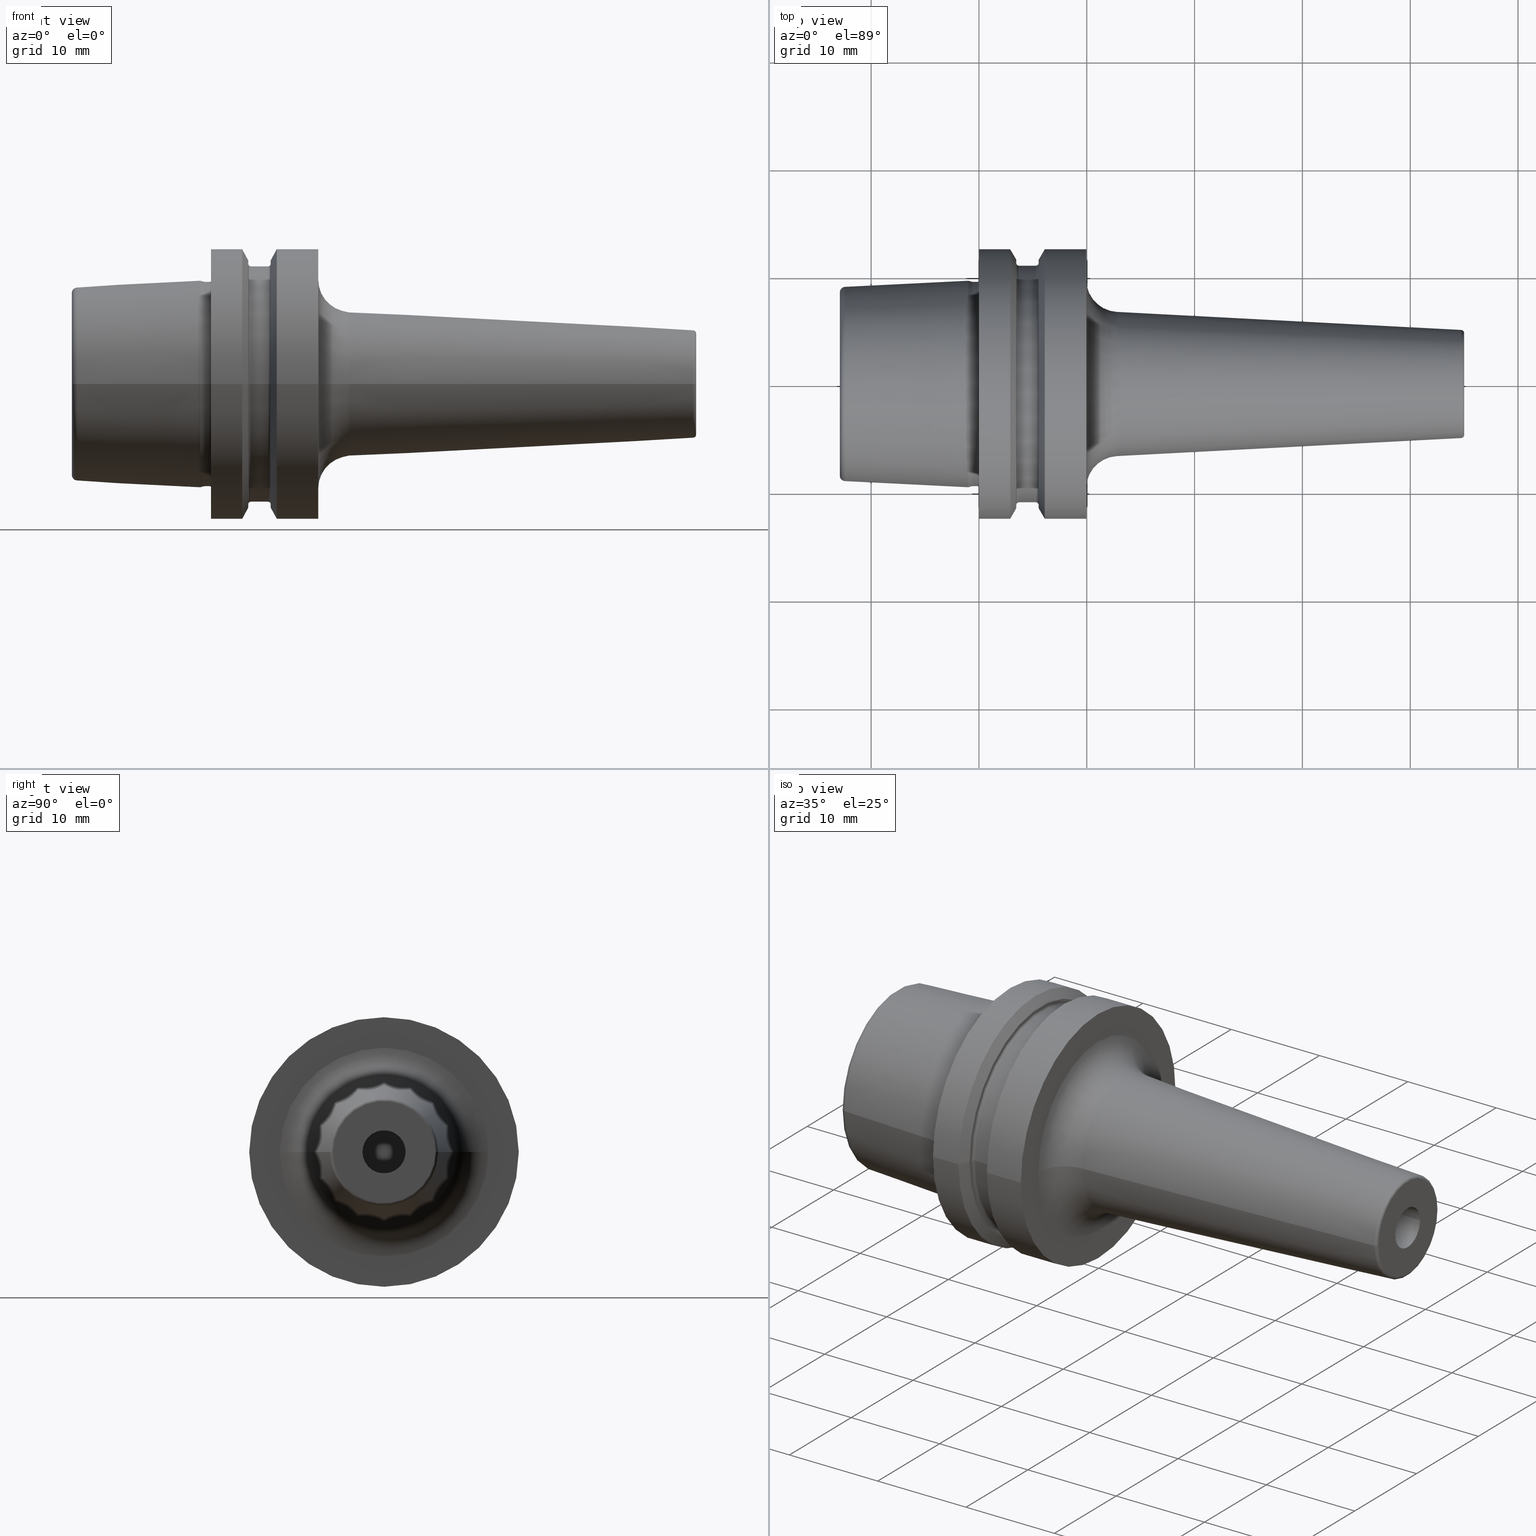
[diagram: canonical four-view strip — front | top / right | iso, engineering-drawing reading convention]
A machine part, canonical four-view strip (front | top / right | iso — engineering-drawing reading convention). The complete STEP part file that produces these views, byte-faithful:
ISO-10303-21;
HEADER;
FILE_DESCRIPTION((''),'2;1');
FILE_NAME('E25-180-04','2011-08-31T',('mei'),(''),
'PRO/ENGINEER BY PARAMETRIC TECHNOLOGY CORPORATION, 2010430',
'PRO/ENGINEER BY PARAMETRIC TECHNOLOGY CORPORATION, 2010430','');
FILE_SCHEMA(('CONFIG_CONTROL_DESIGN'));
ENDSEC;
DATA;
#2=CARTESIAN_POINT('',(-1.E0,0.E0,0.E0));
#3=DIRECTION('',(1.E0,0.E0,0.E0));
#4=DIRECTION('',(0.E0,1.E0,0.E0));
#5=AXIS2_PLACEMENT_3D('',#2,#3,#4);
#7=CARTESIAN_POINT('',(-6.776615382492E-1,0.E0,0.E0));
#8=DIRECTION('',(-1.E0,0.E0,0.E0));
#9=DIRECTION('',(0.E0,-1.E0,0.E0));
#10=AXIS2_PLACEMENT_3D('',#7,#8,#9);
#12=DIRECTION('',(-9.659258262891E-1,-2.588190451025E-1,0.E0));
#13=VECTOR('',#12,3.337093314806E-1);
#14=CARTESIAN_POINT('',(-6.776615382492E-1,-9.491168131023E0,0.E0));
#15=LINE('',#14,#13);
#16=CARTESIAN_POINT('',(-6.776615382492E-1,0.E0,0.E0));
#17=DIRECTION('',(-1.E0,0.E0,0.E0));
#18=DIRECTION('',(0.E0,1.E0,0.E0));
#19=AXIS2_PLACEMENT_3D('',#16,#17,#18);
#21=DIRECTION('',(-9.659258262891E-1,2.588190451025E-1,0.E0));
#22=VECTOR('',#21,3.337093314806E-1);
#23=CARTESIAN_POINT('',(-6.776615382492E-1,9.491168131023E0,0.E0));
#24=LINE('',#23,#22);
#25=CARTESIAN_POINT('',(-1.E0,0.E0,0.E0));
#26=DIRECTION('',(1.E0,0.E0,0.E0));
#27=DIRECTION('',(0.E0,-1.E0,0.E0));
#28=AXIS2_PLACEMENT_3D('',#25,#26,#27);
#30=DIRECTION('',(-9.987676191710E-1,-4.963106784496E-2,0.E0));
#31=VECTOR('',#30,1.143891263055E1);
#32=CARTESIAN_POINT('',(-1.E0,9.577538461538E0,0.E0));
#33=LINE('',#32,#31);
#34=DIRECTION('',(-9.987676191710E-1,4.963106784496E-2,0.E0));
#35=VECTOR('',#34,1.143891263055E1);
#36=CARTESIAN_POINT('',(-1.E0,-9.577538461538E0,0.E0));
#37=LINE('',#36,#35);
#38=CARTESIAN_POINT('',(-1.24E1,8.510429203113E0,0.E0));
#39=DIRECTION('',(0.E0,0.E0,1.E0));
#40=DIRECTION('',(-4.963106784496E-2,9.987676191710E-1,0.E0));
#41=AXIS2_PLACEMENT_3D('',#38,#39,#40);
#43=CARTESIAN_POINT('',(-1.24E1,-8.510429203113E0,0.E0));
#44=DIRECTION('',(0.E0,0.E0,-1.E0));
#45=DIRECTION('',(-4.963106784496E-2,-9.987676191710E-1,0.E0));
#46=AXIS2_PLACEMENT_3D('',#43,#44,#45);
#48=CARTESIAN_POINT('',(-1.242481553392E1,0.E0,0.E0));
#49=DIRECTION('',(-1.E0,0.E0,0.E0));
#50=DIRECTION('',(0.E0,1.E0,0.E0));
#51=AXIS2_PLACEMENT_3D('',#48,#49,#50);
#53=CARTESIAN_POINT('',(-1.242481553392E1,0.E0,0.E0));
#54=DIRECTION('',(1.E0,0.E0,0.E0));
#55=DIRECTION('',(0.E0,1.E0,0.E0));
#56=AXIS2_PLACEMENT_3D('',#53,#54,#55);
#58=CARTESIAN_POINT('',(-1.29E1,0.E0,0.E0));
#59=DIRECTION('',(-1.E0,0.E0,0.E0));
#60=DIRECTION('',(0.E0,1.E0,0.E0));
#61=AXIS2_PLACEMENT_3D('',#58,#59,#60);
#63=CARTESIAN_POINT('',(-1.29E1,0.E0,0.E0));
#64=DIRECTION('',(1.E0,0.E0,0.E0));
#65=DIRECTION('',(0.E0,1.E0,0.E0));
#66=AXIS2_PLACEMENT_3D('',#63,#64,#65);
#68=CARTESIAN_POINT('',(-1.29E1,0.E0,0.E0));
#69=DIRECTION('',(1.E0,0.E0,0.E0));
#70=DIRECTION('',(0.E0,1.E0,0.E0));
#71=AXIS2_PLACEMENT_3D('',#68,#69,#70);
#73=CARTESIAN_POINT('',(-1.29E1,0.E0,0.E0));
#74=DIRECTION('',(1.E0,0.E0,0.E0));
#75=DIRECTION('',(0.E0,-1.E0,0.E0));
#76=AXIS2_PLACEMENT_3D('',#73,#74,#75);
#78=CARTESIAN_POINT('',(-1.215E1,0.E0,0.E0));
#79=DIRECTION('',(1.E0,0.E0,0.E0));
#80=DIRECTION('',(0.E0,1.E0,0.E0));
#81=AXIS2_PLACEMENT_3D('',#78,#79,#80);
#83=DIRECTION('',(-8.660254037844E-1,5.E-1,0.E0));
#84=VECTOR('',#83,8.660254037844E-1);
#85=CARTESIAN_POINT('',(-1.215E1,7.0175E0,0.E0));
#86=LINE('',#85,#84);
#87=CARTESIAN_POINT('',(-1.215E1,0.E0,0.E0));
#88=DIRECTION('',(-1.E0,0.E0,0.E0));
#89=DIRECTION('',(0.E0,1.E0,0.E0));
#90=AXIS2_PLACEMENT_3D('',#87,#88,#89);
#92=DIRECTION('',(-8.660254037844E-1,-5.E-1,0.E0));
#93=VECTOR('',#92,8.660254037844E-1);
#94=CARTESIAN_POINT('',(-1.215E1,-7.0175E0,0.E0));
#95=LINE('',#94,#93);
#96=DIRECTION('',(-1.E0,0.E0,0.E0));
#97=VECTOR('',#96,4.661428495116E0);
#98=CARTESIAN_POINT('',(-7.488571504884E0,7.0175E0,0.E0));
#99=LINE('',#98,#97);
#100=CARTESIAN_POINT('',(-7.488571504884E0,0.E0,0.E0));
#101=DIRECTION('',(-1.E0,0.E0,0.E0));
#102=DIRECTION('',(0.E0,1.E0,0.E0));
#103=AXIS2_PLACEMENT_3D('',#100,#101,#102);
#105=DIRECTION('',(-1.E0,0.E0,0.E0));
#106=VECTOR('',#105,4.661428495116E0);
#107=CARTESIAN_POINT('',(-7.488571504884E0,-7.0175E0,0.E0));
#108=LINE('',#107,#106);
#109=CARTESIAN_POINT('',(-7.488571504884E0,0.E0,0.E0));
#110=DIRECTION('',(1.E0,0.E0,0.E0));
#111=DIRECTION('',(0.E0,1.E0,0.E0));
#112=AXIS2_PLACEMENT_3D('',#109,#110,#111);
#114=CARTESIAN_POINT('',(-6.876580219543E0,0.E0,0.E0));
#115=DIRECTION('',(1.E0,0.E0,0.E0));
#116=DIRECTION('',(0.E0,1.E0,0.E0));
#117=AXIS2_PLACEMENT_3D('',#114,#115,#116);
#119=DIRECTION('',(-5.E-1,-8.660254037844E-1,0.E0));
#120=VECTOR('',#119,1.223982570682E0);
#121=CARTESIAN_POINT('',(-6.876580219543E0,8.0775E0,0.E0));
#122=LINE('',#121,#120);
#123=CARTESIAN_POINT('',(-6.876580219543E0,0.E0,0.E0));
#124=DIRECTION('',(-1.E0,0.E0,0.E0));
#125=DIRECTION('',(0.E0,1.E0,0.E0));
#126=AXIS2_PLACEMENT_3D('',#123,#124,#125);
#128=DIRECTION('',(-5.E-1,8.660254037844E-1,0.E0));
#129=VECTOR('',#128,1.223982570682E0);
#130=CARTESIAN_POINT('',(-6.876580219543E0,-8.0775E0,0.E0));
#131=LINE('',#130,#129);
#132=CARTESIAN_POINT('',(-6.616772598408E0,7.9275E0,0.E0));
#133=DIRECTION('',(0.E0,0.E0,1.E0));
#134=DIRECTION('',(0.E0,1.E0,0.E0));
#135=AXIS2_PLACEMENT_3D('',#132,#133,#134);
#137=CARTESIAN_POINT('',(-6.616772598408E0,0.E0,0.E0));
#138=DIRECTION('',(-1.E0,0.E0,0.E0));
#139=DIRECTION('',(0.E0,1.E0,0.E0));
#140=AXIS2_PLACEMENT_3D('',#137,#138,#139);
#142=CARTESIAN_POINT('',(-6.616772598408E0,-7.9275E0,0.E0));
#143=DIRECTION('',(0.E0,0.E0,-1.E0));
#144=DIRECTION('',(0.E0,-1.E0,0.E0));
#145=AXIS2_PLACEMENT_3D('',#142,#143,#144);
#147=CARTESIAN_POINT('',(-6.616772598408E0,0.E0,0.E0));
#148=DIRECTION('',(1.E0,0.E0,0.E0));
#149=DIRECTION('',(0.E0,1.E0,0.E0));
#150=AXIS2_PLACEMENT_3D('',#147,#148,#149);
#152=CARTESIAN_POINT('',(-2.307467549106E0,0.E0,0.E0));
#153=DIRECTION('',(1.E0,0.E0,0.E0));
#154=DIRECTION('',(0.E0,1.E0,0.E0));
#155=AXIS2_PLACEMENT_3D('',#152,#153,#154);
#157=DIRECTION('',(-1.E0,0.E0,0.E0));
#158=VECTOR('',#157,4.309305049301E0);
#159=CARTESIAN_POINT('',(-2.307467549106E0,8.2275E0,0.E0));
#160=LINE('',#159,#158);
#161=CARTESIAN_POINT('',(-2.307467549106E0,0.E0,0.E0));
#162=DIRECTION('',(-1.E0,0.E0,0.E0));
#163=DIRECTION('',(0.E0,1.E0,0.E0));
#164=AXIS2_PLACEMENT_3D('',#161,#162,#163);
#166=DIRECTION('',(-1.E0,0.E0,0.E0));
#167=VECTOR('',#166,4.309305049301E0);
#168=CARTESIAN_POINT('',(-2.307467549106E0,-8.2275E0,0.E0));
#169=LINE('',#168,#167);
#170=CARTESIAN_POINT('',(-2.307467549106E0,5.2275E0,0.E0));
#171=DIRECTION('',(0.E0,0.E0,1.E0));
#172=DIRECTION('',(8.024891830354E-1,5.966666666667E-1,0.E0));
#173=AXIS2_PLACEMENT_3D('',#170,#171,#172);
#175=CARTESIAN_POINT('',(1.E-1,0.E0,0.E0));
#176=DIRECTION('',(-1.E0,0.E0,0.E0));
#177=DIRECTION('',(0.E0,1.E0,0.E0));
#178=AXIS2_PLACEMENT_3D('',#175,#176,#177);
#180=CARTESIAN_POINT('',(-2.307467549106E0,-5.2275E0,0.E0));
#181=DIRECTION('',(0.E0,0.E0,-1.E0));
#182=DIRECTION('',(8.024891830354E-1,-5.966666666667E-1,0.E0));
#183=AXIS2_PLACEMENT_3D('',#180,#181,#182);
#185=CARTESIAN_POINT('',(1.E-1,0.E0,0.E0));
#186=DIRECTION('',(1.E0,0.E0,0.E0));
#187=DIRECTION('',(0.E0,1.E0,0.E0));
#188=AXIS2_PLACEMENT_3D('',#185,#186,#187);
#190=CARTESIAN_POINT('',(5.085728466663E0,0.E0,0.E0));
#191=DIRECTION('',(1.E0,0.E0,0.E0));
#192=DIRECTION('',(0.E0,1.E0,0.E0));
#193=AXIS2_PLACEMENT_3D('',#190,#191,#192);
#195=DIRECTION('',(-1.E0,0.E0,0.E0));
#196=VECTOR('',#195,4.985728466663E0);
#197=CARTESIAN_POINT('',(5.085728466663E0,7.0175E0,0.E0));
#198=LINE('',#197,#196);
#199=CARTESIAN_POINT('',(5.085728466663E0,0.E0,0.E0));
#200=DIRECTION('',(-1.E0,0.E0,0.E0));
#201=DIRECTION('',(0.E0,1.E0,0.E0));
#202=AXIS2_PLACEMENT_3D('',#199,#200,#201);
#204=DIRECTION('',(-1.E0,0.E0,0.E0));
#205=VECTOR('',#204,4.985728466663E0);
#206=CARTESIAN_POINT('',(5.085728466663E0,-7.0175E0,0.E0));
#207=LINE('',#206,#205);
#208=CARTESIAN_POINT('',(5.45E0,6.675E0,0.E0));
#209=DIRECTION('',(0.E0,0.E0,1.E0));
#210=DIRECTION('',(1.E0,0.E0,0.E0));
#211=AXIS2_PLACEMENT_3D('',#208,#209,#210);
#213=CARTESIAN_POINT('',(5.95E0,0.E0,0.E0));
#214=DIRECTION('',(-1.E0,0.E0,0.E0));
#215=DIRECTION('',(0.E0,1.E0,0.E0));
#216=AXIS2_PLACEMENT_3D('',#213,#214,#215);
#218=CARTESIAN_POINT('',(5.45E0,-6.675E0,0.E0));
#219=DIRECTION('',(0.E0,0.E0,-1.E0));
#220=DIRECTION('',(1.E0,0.E0,0.E0));
#221=AXIS2_PLACEMENT_3D('',#218,#219,#220);
#223=CARTESIAN_POINT('',(5.95E0,0.E0,0.E0));
#224=DIRECTION('',(1.E0,0.E0,0.E0));
#225=DIRECTION('',(0.E0,1.E0,0.E0));
#226=AXIS2_PLACEMENT_3D('',#223,#224,#225);
#228=CARTESIAN_POINT('',(-5.741339202082E-1,9.877538461538E0,0.E0));
#229=DIRECTION('',(0.E0,0.E0,-1.E0));
#230=DIRECTION('',(0.E0,-1.E0,0.E0));
#231=AXIS2_PLACEMENT_3D('',#228,#229,#230);
#233=CARTESIAN_POINT('',(-5.741339202082E-1,-9.877538461538E0,0.E0));
#234=DIRECTION('',(0.E0,0.E0,1.E0));
#235=DIRECTION('',(0.E0,1.E0,0.E0));
#236=AXIS2_PLACEMENT_3D('',#233,#234,#235);
#238=CARTESIAN_POINT('',(-5.741339202082E-1,0.E0,0.E0));
#239=DIRECTION('',(-1.E0,0.E0,0.E0));
#240=DIRECTION('',(0.E0,1.E0,0.E0));
#241=AXIS2_PLACEMENT_3D('',#238,#239,#240);
#243=CARTESIAN_POINT('',(-5.741339202082E-1,0.E0,0.E0));
#244=DIRECTION('',(-1.E0,0.E0,0.E0));
#245=DIRECTION('',(0.E0,-1.E0,0.E0));
#246=AXIS2_PLACEMENT_3D('',#243,#244,#245);
#248=CARTESIAN_POINT('',(-1.541771632753E-1,0.E0,0.E0));
#249=DIRECTION('',(-1.E0,0.E0,0.E0));
#250=DIRECTION('',(0.E0,-1.E0,0.E0));
#251=AXIS2_PLACEMENT_3D('',#248,#249,#250);
#253=DIRECTION('',(-1.E0,0.E0,0.E0));
#254=VECTOR('',#253,4.199567569328E-1);
#255=CARTESIAN_POINT('',(-1.541771632753E-1,9.477538461538E0,0.E0));
#256=LINE('',#255,#254);
#257=DIRECTION('',(-1.E0,0.E0,0.E0));
#258=VECTOR('',#257,4.199567569328E-1);
#259=CARTESIAN_POINT('',(-1.541771632753E-1,-9.477538461538E0,0.E0));
#260=LINE('',#259,#258);
#261=CARTESIAN_POINT('',(-1.541771632753E-1,0.E0,0.E0));
#262=DIRECTION('',(-1.E0,0.E0,0.E0));
#263=DIRECTION('',(0.E0,1.E0,0.E0));
#264=AXIS2_PLACEMENT_3D('',#261,#262,#263);
#266=CARTESIAN_POINT('',(-1.541771632753E-1,9.877538461538E0,0.E0));
#267=DIRECTION('',(0.E0,0.E0,-1.E0));
#268=DIRECTION('',(9.304175679820E-1,3.665012267243E-1,0.E0));
#269=AXIS2_PLACEMENT_3D('',#266,#267,#268);
#271=CARTESIAN_POINT('',(-1.541771632753E-1,-9.877538461538E0,0.E0));
#272=DIRECTION('',(0.E0,0.E0,1.E0));
#273=DIRECTION('',(9.304175679820E-1,-3.665012267243E-1,0.E0));
#274=AXIS2_PLACEMENT_3D('',#271,#272,#273);
#276=CARTESIAN_POINT('',(2.179898639175E-1,0.E0,0.E0));
#277=DIRECTION('',(-1.E0,0.E0,0.E0));
#278=DIRECTION('',(0.E0,1.E0,0.E0));
#279=AXIS2_PLACEMENT_3D('',#276,#277,#278);
#281=CARTESIAN_POINT('',(2.179898639175E-1,0.E0,0.E0));
#282=DIRECTION('',(-1.E0,0.E0,0.E0));
#283=DIRECTION('',(0.E0,-1.E0,0.E0));
#284=AXIS2_PLACEMENT_3D('',#281,#282,#283);
#286=DIRECTION('',(3.665012267243E-1,9.304175679820E-1,0.E0));
#287=VECTOR('',#286,5.947861781141E-1);
#288=CARTESIAN_POINT('',(0.E0,-1.057753846154E1,0.E0));
#289=LINE('',#288,#287);
#290=DIRECTION('',(3.665012267243E-1,-9.304175679820E-1,0.E0));
#291=VECTOR('',#290,5.947861781141E-1);
#292=CARTESIAN_POINT('',(0.E0,1.057753846154E1,0.E0));
#293=LINE('',#292,#291);
#294=CARTESIAN_POINT('',(0.E0,0.E0,0.E0));
#295=DIRECTION('',(1.E0,0.E0,0.E0));
#296=DIRECTION('',(0.E0,1.E0,0.E0));
#297=AXIS2_PLACEMENT_3D('',#294,#295,#296);
#299=CARTESIAN_POINT('',(0.E0,0.E0,0.E0));
#300=DIRECTION('',(-1.E0,0.E0,0.E0));
#301=DIRECTION('',(0.E0,1.E0,0.E0));
#302=AXIS2_PLACEMENT_3D('',#299,#300,#301);
#304=CARTESIAN_POINT('',(0.E0,0.E0,0.E0));
#305=DIRECTION('',(-1.E0,0.E0,0.E0));
#306=DIRECTION('',(0.E0,-1.E0,0.E0));
#307=AXIS2_PLACEMENT_3D('',#304,#305,#306);
#309=CARTESIAN_POINT('',(0.E0,0.E0,0.E0));
#310=DIRECTION('',(-1.E0,0.E0,0.E0));
#311=DIRECTION('',(0.E0,1.E0,0.E0));
#312=AXIS2_PLACEMENT_3D('',#309,#310,#311);
#314=CARTESIAN_POINT('',(6.102146997001E0,0.E0,0.E0));
#315=DIRECTION('',(1.E0,0.E0,0.E0));
#316=DIRECTION('',(0.E0,1.E0,0.E0));
#317=AXIS2_PLACEMENT_3D('',#314,#315,#316);
#319=CARTESIAN_POINT('',(9.95E0,0.E0,0.E0));
#320=DIRECTION('',(1.E0,0.E0,0.E0));
#321=DIRECTION('',(0.E0,1.E0,0.E0));
#322=AXIS2_PLACEMENT_3D('',#319,#320,#321);
#324=CARTESIAN_POINT('',(2.897853002999E0,0.E0,0.E0));
#325=DIRECTION('',(1.E0,0.E0,0.E0));
#326=DIRECTION('',(0.E0,1.E0,0.E0));
#327=AXIS2_PLACEMENT_3D('',#324,#325,#326);
#329=CARTESIAN_POINT('',(5.5375E0,0.E0,0.E0));
#330=DIRECTION('',(1.E0,0.E0,0.E0));
#331=DIRECTION('',(0.E0,1.E0,0.E0));
#332=AXIS2_PLACEMENT_3D('',#329,#330,#331);
#334=DIRECTION('',(5.E-1,8.660254037844E-1,0.E0));
#335=VECTOR('',#334,1.129293994002E0);
#336=CARTESIAN_POINT('',(5.5375E0,1.152200271285E1,0.E0));
#337=LINE('',#336,#335);
#338=CARTESIAN_POINT('',(5.5375E0,0.E0,0.E0));
#339=DIRECTION('',(-1.E0,0.E0,0.E0));
#340=DIRECTION('',(0.E0,1.E0,0.E0));
#341=AXIS2_PLACEMENT_3D('',#338,#339,#340);
#343=DIRECTION('',(5.E-1,-8.660254037844E-1,0.E0));
#344=VECTOR('',#343,1.129293994002E0);
#345=CARTESIAN_POINT('',(5.5375E0,-1.152200271285E1,0.E0));
#346=LINE('',#345,#344);
#347=CARTESIAN_POINT('',(5.5375E0,0.E0,0.E0));
#348=DIRECTION('',(-1.E0,0.E0,0.E0));
#349=DIRECTION('',(0.E0,1.E0,0.E0));
#350=AXIS2_PLACEMENT_3D('',#347,#348,#349);
#352=CARTESIAN_POINT('',(5.5375E0,0.E0,0.E0));
#353=DIRECTION('',(1.E0,0.E0,0.E0));
#354=DIRECTION('',(0.E0,1.E0,0.E0));
#355=AXIS2_PLACEMENT_3D('',#352,#353,#354);
#357=CARTESIAN_POINT('',(5.2875E0,1.1225E1,0.E0));
#358=DIRECTION('',(0.E0,0.E0,1.E0));
#359=DIRECTION('',(0.E0,-1.E0,0.E0));
#360=AXIS2_PLACEMENT_3D('',#357,#358,#359);
#362=CARTESIAN_POINT('',(5.2875E0,0.E0,0.E0));
#363=DIRECTION('',(-1.E0,0.E0,0.E0));
#364=DIRECTION('',(0.E0,1.E0,0.E0));
#365=AXIS2_PLACEMENT_3D('',#362,#363,#364);
#367=CARTESIAN_POINT('',(5.2875E0,-1.1225E1,0.E0));
#368=DIRECTION('',(0.E0,0.E0,-1.E0));
#369=DIRECTION('',(0.E0,1.E0,0.E0));
#370=AXIS2_PLACEMENT_3D('',#367,#368,#369);
#372=CARTESIAN_POINT('',(5.2875E0,0.E0,0.E0));
#373=DIRECTION('',(1.E0,0.E0,0.E0));
#374=DIRECTION('',(0.E0,1.E0,0.E0));
#375=AXIS2_PLACEMENT_3D('',#372,#373,#374);
#377=CARTESIAN_POINT('',(3.7125E0,0.E0,0.E0));
#378=DIRECTION('',(1.E0,0.E0,0.E0));
#379=DIRECTION('',(0.E0,1.E0,0.E0));
#380=AXIS2_PLACEMENT_3D('',#377,#378,#379);
#382=DIRECTION('',(1.E0,0.E0,0.E0));
#383=VECTOR('',#382,1.575E0);
#384=CARTESIAN_POINT('',(3.7125E0,-1.0975E1,0.E0));
#385=LINE('',#384,#383);
#386=DIRECTION('',(-1.E0,0.E0,0.E0));
#387=VECTOR('',#386,1.575E0);
#388=CARTESIAN_POINT('',(5.2875E0,1.0975E1,0.E0));
#389=LINE('',#388,#387);
#390=CARTESIAN_POINT('',(3.7125E0,0.E0,0.E0));
#391=DIRECTION('',(-1.E0,0.E0,0.E0));
#392=DIRECTION('',(0.E0,1.E0,0.E0));
#393=AXIS2_PLACEMENT_3D('',#390,#391,#392);
#395=CARTESIAN_POINT('',(3.7125E0,1.1225E1,0.E0));
#396=DIRECTION('',(0.E0,0.E0,1.E0));
#397=DIRECTION('',(-1.E0,0.E0,0.E0));
#398=AXIS2_PLACEMENT_3D('',#395,#396,#397);
#400=CARTESIAN_POINT('',(3.4625E0,0.E0,0.E0));
#401=DIRECTION('',(-1.E0,0.E0,0.E0));
#402=DIRECTION('',(0.E0,1.E0,0.E0));
#403=AXIS2_PLACEMENT_3D('',#400,#401,#402);
#405=CARTESIAN_POINT('',(3.7125E0,-1.1225E1,0.E0));
#406=DIRECTION('',(0.E0,0.E0,-1.E0));
#407=DIRECTION('',(-1.E0,0.E0,0.E0));
#408=AXIS2_PLACEMENT_3D('',#405,#406,#407);
#410=CARTESIAN_POINT('',(3.4625E0,0.E0,0.E0));
#411=DIRECTION('',(1.E0,0.E0,0.E0));
#412=DIRECTION('',(0.E0,1.E0,0.E0));
#413=AXIS2_PLACEMENT_3D('',#410,#411,#412);
#415=CARTESIAN_POINT('',(3.4625E0,0.E0,0.E0));
#416=DIRECTION('',(-1.E0,0.E0,0.E0));
#417=DIRECTION('',(0.E0,1.E0,0.E0));
#418=AXIS2_PLACEMENT_3D('',#415,#416,#417);
#420=CARTESIAN_POINT('',(3.4625E0,0.E0,0.E0));
#421=DIRECTION('',(1.E0,0.E0,0.E0));
#422=DIRECTION('',(0.E0,1.E0,0.E0));
#423=AXIS2_PLACEMENT_3D('',#420,#421,#422);
#425=DIRECTION('',(5.E-1,-8.660254037844E-1,0.E0));
#426=VECTOR('',#425,1.129293994002E0);
#427=CARTESIAN_POINT('',(2.897853002999E0,1.25E1,0.E0));
#428=LINE('',#427,#426);
#429=DIRECTION('',(5.E-1,8.660254037844E-1,0.E0));
#430=VECTOR('',#429,1.129293994002E0);
#431=CARTESIAN_POINT('',(2.897853002999E0,-1.25E1,0.E0));
#432=LINE('',#431,#430);
#433=CARTESIAN_POINT('',(6.102146997001E0,0.E0,0.E0));
#434=DIRECTION('',(1.E0,0.E0,0.E0));
#435=DIRECTION('',(0.E0,-1.E0,0.E0));
#436=AXIS2_PLACEMENT_3D('',#433,#434,#435);
#438=DIRECTION('',(-1.E0,0.E0,0.E0));
#439=VECTOR('',#438,3.847853002999E0);
#440=CARTESIAN_POINT('',(9.95E0,-1.25E1,0.E0));
#441=LINE('',#440,#439);
#442=CARTESIAN_POINT('',(9.95E0,0.E0,0.E0));
#443=DIRECTION('',(-1.E0,0.E0,0.E0));
#444=DIRECTION('',(0.E0,1.E0,0.E0));
#445=AXIS2_PLACEMENT_3D('',#442,#443,#444);
#447=DIRECTION('',(-1.E0,0.E0,0.E0));
#448=VECTOR('',#447,3.847853002999E0);
#449=CARTESIAN_POINT('',(9.95E0,1.25E1,0.E0));
#450=LINE('',#449,#448);
#451=CARTESIAN_POINT('',(2.897853002999E0,0.E0,0.E0));
#452=DIRECTION('',(1.E0,0.E0,0.E0));
#453=DIRECTION('',(0.E0,-1.E0,0.E0));
#454=AXIS2_PLACEMENT_3D('',#451,#452,#453);
#456=DIRECTION('',(-1.E0,0.E0,0.E0));
#457=VECTOR('',#456,2.897853002999E0);
#458=CARTESIAN_POINT('',(2.897853002999E0,1.25E1,0.E0));
#459=LINE('',#458,#457);
#460=DIRECTION('',(-1.E0,0.E0,0.E0));
#461=VECTOR('',#460,2.897853002999E0);
#462=CARTESIAN_POINT('',(2.897853002999E0,-1.25E1,0.E0));
#463=LINE('',#462,#461);
#464=CARTESIAN_POINT('',(9.95E0,0.E0,0.E0));
#465=DIRECTION('',(1.E0,0.E0,0.E0));
#466=DIRECTION('',(0.E0,-1.E0,0.E0));
#467=AXIS2_PLACEMENT_3D('',#464,#465,#466);
#469=CARTESIAN_POINT('',(9.95E0,0.E0,0.E0));
#470=DIRECTION('',(1.E0,0.E0,0.E0));
#471=DIRECTION('',(0.E0,1.E0,0.E0));
#472=AXIS2_PLACEMENT_3D('',#469,#470,#471);
#474=CARTESIAN_POINT('',(1.295E1,-9.683786364015E0,5.582978523933E-12));
#475=DIRECTION('',(0.E0,-5.765284083470E-13,-1.E0));
#476=DIRECTION('',(-1.E0,1.119104808822E-13,0.E0));
#477=AXIS2_PLACEMENT_3D('',#474,#475,#476);
#479=CARTESIAN_POINT('',(1.295E1,9.683786364015E0,-5.584199769260E-12));
#480=DIRECTION('',(0.E0,5.766533084373E-13,1.E0));
#481=DIRECTION('',(-1.E0,-1.130947187751E-13,0.E0));
#482=AXIS2_PLACEMENT_3D('',#479,#480,#481);
#484=CARTESIAN_POINT('',(4.471570078687E1,0.E0,0.E0));
#485=DIRECTION('',(-1.E0,0.E0,0.E0));
#486=DIRECTION('',(0.E0,-1.E0,0.E0));
#487=AXIS2_PLACEMENT_3D('',#484,#485,#486);
#489=CARTESIAN_POINT('',(1.279299213127E1,0.E0,0.E0));
#490=DIRECTION('',(1.E0,0.E0,0.E0));
#491=DIRECTION('',(0.E0,1.E0,0.E0));
#492=AXIS2_PLACEMENT_3D('',#489,#490,#491);
#494=CARTESIAN_POINT('',(4.47E1,-4.715310629986E0,-8.109110605226E-12));
#495=DIRECTION('',(0.E0,-1.719740669315E-12,1.E0));
#496=DIRECTION('',(5.233595624318E-2,-9.986295347546E-1,-1.717383824496E-12));
#497=AXIS2_PLACEMENT_3D('',#494,#495,#496);
#499=CARTESIAN_POINT('',(4.47E1,4.715310629986E0,8.106522397799E-12));
#500=DIRECTION('',(0.E0,1.719190761973E-12,-1.E0));
#501=DIRECTION('',(5.233595624318E-2,9.986295347546E-1,1.716834670783E-12));
#502=AXIS2_PLACEMENT_3D('',#499,#500,#501);
#504=CARTESIAN_POINT('',(4.471570078687E1,0.E0,0.E0));
#505=DIRECTION('',(-1.E0,0.E0,0.E0));
#506=DIRECTION('',(0.E0,1.E0,0.E0));
#507=AXIS2_PLACEMENT_3D('',#504,#505,#506);
#509=DIRECTION('',(-9.986295347546E-1,5.233595624294E-2,1.002756091499E-13));
#510=VECTOR('',#509,3.196651765707E1);
#511=CARTESIAN_POINT('',(4.471570078687E1,5.014899490412E0,
-4.974093773560E-13));
#512=LINE('',#511,#510);
#513=CARTESIAN_POINT('',(1.279299213127E1,0.E0,0.E0));
#514=DIRECTION('',(1.E0,0.E0,0.E0));
#515=DIRECTION('',(0.E0,-1.E0,0.E0));
#516=AXIS2_PLACEMENT_3D('',#513,#514,#515);
#518=DIRECTION('',(-9.986295347546E-1,-5.233595624294E-2,-1.002882276805E-13));
#519=VECTOR('',#518,3.196651765707E1);
#520=CARTESIAN_POINT('',(4.471570078687E1,-5.014899490412E0,
4.983678430649E-13));
#521=LINE('',#520,#519);
#522=CARTESIAN_POINT('',(4.5E1,0.E0,0.E0));
#523=DIRECTION('',(-1.E0,0.E0,0.E0));
#524=DIRECTION('',(0.E0,1.E0,0.E0));
#525=AXIS2_PLACEMENT_3D('',#522,#523,#524);
#527=CARTESIAN_POINT('',(4.5E1,0.E0,0.E0));
#528=DIRECTION('',(-1.E0,0.E0,0.E0));
#529=DIRECTION('',(0.E0,-1.E0,0.E0));
#530=AXIS2_PLACEMENT_3D('',#527,#528,#529);
#532=CARTESIAN_POINT('',(4.5E1,0.E0,0.E0));
#533=DIRECTION('',(1.E0,0.E0,0.E0));
#534=DIRECTION('',(0.E0,1.E0,0.E0));
#535=AXIS2_PLACEMENT_3D('',#532,#533,#534);
#537=CARTESIAN_POINT('',(4.5E1,0.E0,0.E0));
#538=DIRECTION('',(1.E0,0.E0,0.E0));
#539=DIRECTION('',(0.E0,-1.E0,0.E0));
#540=AXIS2_PLACEMENT_3D('',#537,#538,#539);
#542=DIRECTION('',(-1.E0,0.E0,0.E0));
#543=VECTOR('',#542,1.8E1);
#544=CARTESIAN_POINT('',(4.5E1,-2.E0,0.E0));
#545=LINE('',#544,#543);
#546=DIRECTION('',(-1.E0,0.E0,0.E0));
#547=VECTOR('',#546,1.8E1);
#548=CARTESIAN_POINT('',(4.5E1,2.E0,0.E0));
#549=LINE('',#548,#547);
#550=CARTESIAN_POINT('',(2.7E1,0.E0,0.E0));
#551=DIRECTION('',(-1.E0,0.E0,0.E0));
#552=DIRECTION('',(0.E0,1.E0,0.E0));
#553=AXIS2_PLACEMENT_3D('',#550,#551,#552);
#555=CARTESIAN_POINT('',(2.7E1,0.E0,0.E0));
#556=DIRECTION('',(1.E0,0.E0,0.E0));
#557=DIRECTION('',(0.E0,1.E0,0.E0));
#558=AXIS2_PLACEMENT_3D('',#555,#556,#557);
#560=CARTESIAN_POINT('',(2.179898639175E-1,-1.002413895223E1,0.E0));
#561=CARTESIAN_POINT('',(-1.541771632753E-1,-9.477538461538E0,0.E0));
#562=VERTEX_POINT('',#560);
#563=VERTEX_POINT('',#561);
#564=CARTESIAN_POINT('',(-5.741339202082E-1,-9.477538461538E0,0.E0));
#565=VERTEX_POINT('',#564);
#566=CARTESIAN_POINT('',(-6.776615382492E-1,-9.491168131023E0,0.E0));
#567=VERTEX_POINT('',#566);
#568=CARTESIAN_POINT('',(2.179898639175E-1,1.002413895223E1,0.E0));
#569=CARTESIAN_POINT('',(-1.541771632753E-1,9.477538461538E0,0.E0));
#570=VERTEX_POINT('',#568);
#571=VERTEX_POINT('',#569);
#572=CARTESIAN_POINT('',(-5.741339202082E-1,9.477538461538E0,0.E0));
#573=VERTEX_POINT('',#572);
#574=CARTESIAN_POINT('',(-6.776615382492E-1,9.491168131023E0,0.E0));
#575=VERTEX_POINT('',#574);
#576=CARTESIAN_POINT('',(-1.E0,9.577538461538E0,0.E0));
#577=CARTESIAN_POINT('',(-1.E0,-9.577538461538E0,0.E0));
#578=VERTEX_POINT('',#576);
#579=VERTEX_POINT('',#577);
#580=CARTESIAN_POINT('',(-1.242481553392E1,9.009813012699E0,0.E0));
#581=VERTEX_POINT('',#580);
#582=CARTESIAN_POINT('',(-1.242481553392E1,-9.009813012699E0,0.E0));
#583=VERTEX_POINT('',#582);
#584=CARTESIAN_POINT('',(0.E0,-1.057753846154E1,0.E0));
#585=VERTEX_POINT('',#584);
#586=CARTESIAN_POINT('',(0.E0,1.057753846154E1,0.E0));
#587=VERTEX_POINT('',#586);
#588=CARTESIAN_POINT('',(-1.29E1,8.510429203113E0,0.E0));
#589=VERTEX_POINT('',#588);
#590=CARTESIAN_POINT('',(-1.29E1,-8.510429203113E0,0.E0));
#591=VERTEX_POINT('',#590);
#592=CARTESIAN_POINT('',(5.95E0,6.675E0,0.E0));
#593=CARTESIAN_POINT('',(5.085728466663E0,7.0175E0,0.E0));
#594=VERTEX_POINT('',#592);
#595=VERTEX_POINT('',#593);
#596=CARTESIAN_POINT('',(5.95E0,-6.675E0,0.E0));
#597=CARTESIAN_POINT('',(5.085728466663E0,-7.0175E0,0.E0));
#598=VERTEX_POINT('',#596);
#599=VERTEX_POINT('',#597);
#600=CARTESIAN_POINT('',(3.4625E0,1.1225E1,0.E0));
#601=CARTESIAN_POINT('',(3.7125E0,1.0975E1,0.E0));
#602=VERTEX_POINT('',#600);
#603=VERTEX_POINT('',#601);
#604=CARTESIAN_POINT('',(5.2875E0,1.0975E1,0.E0));
#605=CARTESIAN_POINT('',(5.5375E0,1.1225E1,0.E0));
#606=VERTEX_POINT('',#604);
#607=VERTEX_POINT('',#605);
#608=CARTESIAN_POINT('',(3.4625E0,-1.1225E1,0.E0));
#609=CARTESIAN_POINT('',(3.7125E0,-1.0975E1,0.E0));
#610=VERTEX_POINT('',#608);
#611=VERTEX_POINT('',#609);
#612=CARTESIAN_POINT('',(5.2875E0,-1.0975E1,0.E0));
#613=CARTESIAN_POINT('',(5.5375E0,-1.1225E1,0.E0));
#614=VERTEX_POINT('',#612);
#615=VERTEX_POINT('',#613);
#616=CARTESIAN_POINT('',(3.4625E0,1.152200271285E1,0.E0));
#617=CARTESIAN_POINT('',(3.4625E0,-1.152200271285E1,0.E0));
#618=VERTEX_POINT('',#616);
#619=VERTEX_POINT('',#617);
#620=CARTESIAN_POINT('',(5.5375E0,1.152200271285E1,0.E0));
#621=CARTESIAN_POINT('',(5.5375E0,-1.152200271285E1,0.E0));
#622=VERTEX_POINT('',#620);
#623=VERTEX_POINT('',#621);
#624=CARTESIAN_POINT('',(6.102146997001E0,1.25E1,0.E0));
#625=VERTEX_POINT('',#624);
#626=CARTESIAN_POINT('',(2.897853002999E0,1.25E1,0.E0));
#627=VERTEX_POINT('',#626);
#628=CARTESIAN_POINT('',(6.102146997001E0,-1.25E1,0.E0));
#629=VERTEX_POINT('',#628);
#630=CARTESIAN_POINT('',(2.897853002999E0,-1.25E1,0.E0));
#631=VERTEX_POINT('',#630);
#632=CARTESIAN_POINT('',(9.95E0,1.25E1,0.E0));
#633=CARTESIAN_POINT('',(9.95E0,-1.25E1,0.E0));
#634=VERTEX_POINT('',#632);
#635=VERTEX_POINT('',#633);
#636=CARTESIAN_POINT('',(0.E0,1.25E1,0.E0));
#637=CARTESIAN_POINT('',(0.E0,-1.25E1,0.E0));
#638=VERTEX_POINT('',#636);
#639=VERTEX_POINT('',#637);
#640=CARTESIAN_POINT('',(1.E-1,7.0175E0,0.E0));
#641=VERTEX_POINT('',#640);
#642=CARTESIAN_POINT('',(-2.307467549106E0,8.2275E0,0.E0));
#643=VERTEX_POINT('',#642);
#644=CARTESIAN_POINT('',(-6.616772598408E0,8.2275E0,0.E0));
#645=VERTEX_POINT('',#644);
#646=CARTESIAN_POINT('',(-6.876580219543E0,8.0775E0,0.E0));
#647=VERTEX_POINT('',#646);
#648=CARTESIAN_POINT('',(-7.488571504884E0,7.0175E0,0.E0));
#649=VERTEX_POINT('',#648);
#650=CARTESIAN_POINT('',(-1.215E1,7.0175E0,0.E0));
#651=VERTEX_POINT('',#650);
#652=CARTESIAN_POINT('',(1.E-1,-7.0175E0,0.E0));
#653=VERTEX_POINT('',#652);
#654=CARTESIAN_POINT('',(-2.307467549106E0,-8.2275E0,0.E0));
#655=VERTEX_POINT('',#654);
#656=CARTESIAN_POINT('',(-6.616772598408E0,-8.2275E0,0.E0));
#657=VERTEX_POINT('',#656);
#658=CARTESIAN_POINT('',(-6.876580219543E0,-8.0775E0,0.E0));
#659=VERTEX_POINT('',#658);
#660=CARTESIAN_POINT('',(-7.488571504884E0,-7.0175E0,0.E0));
#661=VERTEX_POINT('',#660);
#662=CARTESIAN_POINT('',(-1.215E1,-7.0175E0,0.E0));
#663=VERTEX_POINT('',#662);
#664=CARTESIAN_POINT('',(-1.29E1,7.450512701892E0,0.E0));
#665=VERTEX_POINT('',#664);
#666=CARTESIAN_POINT('',(-1.29E1,-7.450512701892E0,0.E0));
#667=VERTEX_POINT('',#666);
#668=CARTESIAN_POINT('',(9.95E0,-9.683786364015E0,0.E0));
#669=CARTESIAN_POINT('',(9.95E0,9.683786364015E0,0.E0));
#670=VERTEX_POINT('',#668);
#671=VERTEX_POINT('',#669);
#672=CARTESIAN_POINT('',(1.279299213127E1,-6.687897759752E0,0.E0));
#673=CARTESIAN_POINT('',(1.279299213127E1,6.687897759752E0,0.E0));
#674=VERTEX_POINT('',#672);
#675=VERTEX_POINT('',#673);
#676=CARTESIAN_POINT('',(4.471570078687E1,5.014899490412E0,0.E0));
#677=CARTESIAN_POINT('',(4.471570078687E1,-5.014899490412E0,0.E0));
#678=VERTEX_POINT('',#676);
#679=VERTEX_POINT('',#677);
#680=CARTESIAN_POINT('',(4.5E1,4.715310629986E0,0.E0));
#681=CARTESIAN_POINT('',(4.5E1,-4.715310629986E0,0.E0));
#682=VERTEX_POINT('',#680);
#683=VERTEX_POINT('',#681);
#684=CARTESIAN_POINT('',(2.7E1,2.E0,0.E0));
#685=CARTESIAN_POINT('',(2.7E1,-2.E0,0.E0));
#686=VERTEX_POINT('',#684);
#687=VERTEX_POINT('',#685);
#688=CARTESIAN_POINT('',(4.5E1,2.E0,0.E0));
#689=CARTESIAN_POINT('',(4.5E1,-2.E0,0.E0));
#690=VERTEX_POINT('',#688);
#691=VERTEX_POINT('',#689);
#692=CARTESIAN_POINT('',(-6.712407766961E0,0.E0,0.E0));
#693=DIRECTION('',(1.E0,0.E0,0.E0));
#694=DIRECTION('',(0.E0,-1.E0,0.E0));
#695=AXIS2_PLACEMENT_3D('',#692,#693,#694);
#696=CONICAL_SURFACE('',#695,9.293675737119E0,2.844819449936E0);
#698=ORIENTED_EDGE('',*,*,#697,.T.);
#700=ORIENTED_EDGE('',*,*,#699,.T.);
#702=ORIENTED_EDGE('',*,*,#701,.F.);
#704=ORIENTED_EDGE('',*,*,#703,.F.);
#705=EDGE_LOOP('',(#698,#700,#702,#704));
#706=FACE_OUTER_BOUND('',#705,.F.);
#707=ADVANCED_FACE('',(#706),#696,.T.);
#708=CARTESIAN_POINT('',(-8.388307691246E-1,0.E0,0.E0));
#709=DIRECTION('',(-1.E0,0.E0,0.E0));
#710=DIRECTION('',(0.E0,1.E0,0.E0));
#711=AXIS2_PLACEMENT_3D('',#708,#709,#710);
#712=CONICAL_SURFACE('',#711,9.534353296281E0,1.5E1);
#713=ORIENTED_EDGE('',*,*,#697,.F.);
#715=ORIENTED_EDGE('',*,*,#714,.F.);
#717=ORIENTED_EDGE('',*,*,#716,.F.);
#719=ORIENTED_EDGE('',*,*,#718,.T.);
#720=EDGE_LOOP('',(#713,#715,#717,#719));
#721=FACE_OUTER_BOUND('',#720,.F.);
#722=ADVANCED_FACE('',(#721),#712,.T.);
#723=CARTESIAN_POINT('',(-8.388307691246E-1,0.E0,0.E0));
#724=DIRECTION('',(-1.E0,0.E0,0.E0));
#725=DIRECTION('',(0.E0,-1.E0,0.E0));
#726=AXIS2_PLACEMENT_3D('',#723,#724,#725);
#727=CONICAL_SURFACE('',#726,9.534353296281E0,1.5E1);
#729=ORIENTED_EDGE('',*,*,#728,.F.);
#730=ORIENTED_EDGE('',*,*,#718,.F.);
#732=ORIENTED_EDGE('',*,*,#731,.F.);
#733=ORIENTED_EDGE('',*,*,#714,.T.);
#734=EDGE_LOOP('',(#729,#730,#732,#733));
#735=FACE_OUTER_BOUND('',#734,.F.);
#736=ADVANCED_FACE('',(#735),#727,.T.);
#737=CARTESIAN_POINT('',(-6.712407766961E0,0.E0,0.E0));
#738=DIRECTION('',(1.E0,0.E0,0.E0));
#739=DIRECTION('',(0.E0,-1.E0,0.E0));
#740=AXIS2_PLACEMENT_3D('',#737,#738,#739);
#741=CONICAL_SURFACE('',#740,9.293675737119E0,2.844819449936E0);
#742=ORIENTED_EDGE('',*,*,#728,.T.);
#743=ORIENTED_EDGE('',*,*,#703,.T.);
#745=ORIENTED_EDGE('',*,*,#744,.T.);
#746=ORIENTED_EDGE('',*,*,#699,.F.);
#747=EDGE_LOOP('',(#742,#743,#745,#746));
#748=FACE_OUTER_BOUND('',#747,.F.);
#749=ADVANCED_FACE('',(#748),#741,.T.);
#750=CARTESIAN_POINT('',(-1.24E1,0.E0,0.E0));
#751=DIRECTION('',(1.E0,0.E0,0.E0));
#752=DIRECTION('',(0.E0,-1.E0,0.E0));
#753=AXIS2_PLACEMENT_3D('',#750,#751,#752);
#754=TOROIDAL_SURFACE('',#753,8.510429203113E0,5.E-1);
#756=ORIENTED_EDGE('',*,*,#755,.T.);
#758=ORIENTED_EDGE('',*,*,#757,.T.);
#760=ORIENTED_EDGE('',*,*,#759,.F.);
#761=ORIENTED_EDGE('',*,*,#744,.F.);
#762=EDGE_LOOP('',(#756,#758,#760,#761));
#763=FACE_OUTER_BOUND('',#762,.F.);
#764=ADVANCED_FACE('',(#763),#754,.T.);
#765=CARTESIAN_POINT('',(-1.24E1,0.E0,0.E0));
#766=DIRECTION('',(1.E0,0.E0,0.E0));
#767=DIRECTION('',(0.E0,-1.E0,0.E0));
#768=AXIS2_PLACEMENT_3D('',#765,#766,#767);
#769=TOROIDAL_SURFACE('',#768,8.510429203113E0,5.E-1);
#770=ORIENTED_EDGE('',*,*,#755,.F.);
#771=ORIENTED_EDGE('',*,*,#701,.T.);
#772=ORIENTED_EDGE('',*,*,#759,.T.);
#774=ORIENTED_EDGE('',*,*,#773,.F.);
#775=EDGE_LOOP('',(#770,#771,#772,#774));
#776=FACE_OUTER_BOUND('',#775,.F.);
#777=ADVANCED_FACE('',(#776),#769,.T.);
#778=CARTESIAN_POINT('',(-1.29E1,0.E0,0.E0));
#779=DIRECTION('',(1.E0,0.E0,0.E0));
#780=DIRECTION('',(0.E0,-1.E0,0.E0));
#781=AXIS2_PLACEMENT_3D('',#778,#779,#780);
#782=PLANE('',#781);
#783=ORIENTED_EDGE('',*,*,#757,.F.);
#784=ORIENTED_EDGE('',*,*,#773,.T.);
#785=EDGE_LOOP('',(#783,#784));
#786=FACE_OUTER_BOUND('',#785,.F.);
#788=ORIENTED_EDGE('',*,*,#787,.F.);
#790=ORIENTED_EDGE('',*,*,#789,.F.);
#791=EDGE_LOOP('',(#788,#790));
#792=FACE_BOUND('',#791,.F.);
#793=ADVANCED_FACE('',(#786,#792),#782,.F.);
#794=CARTESIAN_POINT('',(-1.2525E1,0.E0,0.E0));
#795=DIRECTION('',(-1.E0,0.E0,0.E0));
#796=DIRECTION('',(0.E0,1.E0,0.E0));
#797=AXIS2_PLACEMENT_3D('',#794,#795,#796);
#798=CONICAL_SURFACE('',#797,7.234006350946E0,3.E1);
#800=ORIENTED_EDGE('',*,*,#799,.T.);
#801=ORIENTED_EDGE('',*,*,#787,.T.);
#803=ORIENTED_EDGE('',*,*,#802,.F.);
#805=ORIENTED_EDGE('',*,*,#804,.F.);
#806=EDGE_LOOP('',(#800,#801,#803,#805));
#807=FACE_OUTER_BOUND('',#806,.F.);
#808=ADVANCED_FACE('',(#807),#798,.F.);
#809=CARTESIAN_POINT('',(-1.2525E1,0.E0,0.E0));
#810=DIRECTION('',(-1.E0,0.E0,0.E0));
#811=DIRECTION('',(0.E0,1.E0,0.E0));
#812=AXIS2_PLACEMENT_3D('',#809,#810,#811);
#813=CONICAL_SURFACE('',#812,7.234006350946E0,3.E1);
#814=ORIENTED_EDGE('',*,*,#799,.F.);
#816=ORIENTED_EDGE('',*,*,#815,.T.);
#817=ORIENTED_EDGE('',*,*,#802,.T.);
#818=ORIENTED_EDGE('',*,*,#789,.T.);
#819=EDGE_LOOP('',(#814,#816,#817,#818));
#820=FACE_OUTER_BOUND('',#819,.F.);
#821=ADVANCED_FACE('',(#820),#813,.F.);
#822=CARTESIAN_POINT('',(-1.38425E1,0.E0,0.E0));
#823=DIRECTION('',(1.E0,0.E0,0.E0));
#824=DIRECTION('',(0.E0,-1.E0,0.E0));
#825=AXIS2_PLACEMENT_3D('',#822,#823,#824);
#826=CYLINDRICAL_SURFACE('',#825,7.0175E0);
#828=ORIENTED_EDGE('',*,*,#827,.F.);
#830=ORIENTED_EDGE('',*,*,#829,.T.);
#832=ORIENTED_EDGE('',*,*,#831,.T.);
#833=ORIENTED_EDGE('',*,*,#815,.F.);
#834=EDGE_LOOP('',(#828,#830,#832,#833));
#835=FACE_OUTER_BOUND('',#834,.F.);
#836=ADVANCED_FACE('',(#835),#826,.F.);
#837=CARTESIAN_POINT('',(-1.38425E1,0.E0,0.E0));
#838=DIRECTION('',(1.E0,0.E0,0.E0));
#839=DIRECTION('',(0.E0,-1.E0,0.E0));
#840=AXIS2_PLACEMENT_3D('',#837,#838,#839);
#841=CYLINDRICAL_SURFACE('',#840,7.0175E0);
#842=ORIENTED_EDGE('',*,*,#827,.T.);
#843=ORIENTED_EDGE('',*,*,#804,.T.);
#844=ORIENTED_EDGE('',*,*,#831,.F.);
#846=ORIENTED_EDGE('',*,*,#845,.F.);
#847=EDGE_LOOP('',(#842,#843,#844,#846));
#848=FACE_OUTER_BOUND('',#847,.F.);
#849=ADVANCED_FACE('',(#848),#841,.F.);
#850=CARTESIAN_POINT('',(-7.182575862213E0,0.E0,0.E0));
#851=DIRECTION('',(1.E0,0.E0,0.E0));
#852=DIRECTION('',(0.E0,-1.E0,0.E0));
#853=AXIS2_PLACEMENT_3D('',#850,#851,#852);
#854=CONICAL_SURFACE('',#853,7.5475E0,6.E1);
#856=ORIENTED_EDGE('',*,*,#855,.T.);
#857=ORIENTED_EDGE('',*,*,#845,.T.);
#859=ORIENTED_EDGE('',*,*,#858,.F.);
#861=ORIENTED_EDGE('',*,*,#860,.F.);
#862=EDGE_LOOP('',(#856,#857,#859,#861));
#863=FACE_OUTER_BOUND('',#862,.F.);
#864=ADVANCED_FACE('',(#863),#854,.F.);
#865=CARTESIAN_POINT('',(-7.182575862213E0,0.E0,0.E0));
#866=DIRECTION('',(1.E0,0.E0,0.E0));
#867=DIRECTION('',(0.E0,-1.E0,0.E0));
#868=AXIS2_PLACEMENT_3D('',#865,#866,#867);
#869=CONICAL_SURFACE('',#868,7.5475E0,6.E1);
#870=ORIENTED_EDGE('',*,*,#855,.F.);
#872=ORIENTED_EDGE('',*,*,#871,.T.);
#873=ORIENTED_EDGE('',*,*,#858,.T.);
#874=ORIENTED_EDGE('',*,*,#829,.F.);
#875=EDGE_LOOP('',(#870,#872,#873,#874));
#876=FACE_OUTER_BOUND('',#875,.F.);
#877=ADVANCED_FACE('',(#876),#869,.F.);
#878=CARTESIAN_POINT('',(-6.616772598408E0,0.E0,0.E0));
#879=DIRECTION('',(1.E0,0.E0,0.E0));
#880=DIRECTION('',(0.E0,-1.E0,0.E0));
#881=AXIS2_PLACEMENT_3D('',#878,#879,#880);
#882=TOROIDAL_SURFACE('',#881,7.9275E0,3.E-1);
#884=ORIENTED_EDGE('',*,*,#883,.F.);
#886=ORIENTED_EDGE('',*,*,#885,.T.);
#888=ORIENTED_EDGE('',*,*,#887,.T.);
#889=ORIENTED_EDGE('',*,*,#871,.F.);
#890=EDGE_LOOP('',(#884,#886,#888,#889));
#891=FACE_OUTER_BOUND('',#890,.F.);
#892=ADVANCED_FACE('',(#891),#882,.F.);
#893=CARTESIAN_POINT('',(-6.616772598408E0,0.E0,0.E0));
#894=DIRECTION('',(1.E0,0.E0,0.E0));
#895=DIRECTION('',(0.E0,-1.E0,0.E0));
#896=AXIS2_PLACEMENT_3D('',#893,#894,#895);
#897=TOROIDAL_SURFACE('',#896,7.9275E0,3.E-1);
#898=ORIENTED_EDGE('',*,*,#883,.T.);
#899=ORIENTED_EDGE('',*,*,#860,.T.);
#900=ORIENTED_EDGE('',*,*,#887,.F.);
#902=ORIENTED_EDGE('',*,*,#901,.F.);
#903=EDGE_LOOP('',(#898,#899,#900,#902));
#904=FACE_OUTER_BOUND('',#903,.F.);
#905=ADVANCED_FACE('',(#904),#897,.F.);
#906=CARTESIAN_POINT('',(-1.38425E1,0.E0,0.E0));
#907=DIRECTION('',(1.E0,0.E0,0.E0));
#908=DIRECTION('',(0.E0,-1.E0,0.E0));
#909=AXIS2_PLACEMENT_3D('',#906,#907,#908);
#910=CYLINDRICAL_SURFACE('',#909,8.2275E0);
#912=ORIENTED_EDGE('',*,*,#911,.T.);
#913=ORIENTED_EDGE('',*,*,#901,.T.);
#915=ORIENTED_EDGE('',*,*,#914,.F.);
#917=ORIENTED_EDGE('',*,*,#916,.F.);
#918=EDGE_LOOP('',(#912,#913,#915,#917));
#919=FACE_OUTER_BOUND('',#918,.F.);
#920=ADVANCED_FACE('',(#919),#910,.F.);
#921=CARTESIAN_POINT('',(-1.38425E1,0.E0,0.E0));
#922=DIRECTION('',(1.E0,0.E0,0.E0));
#923=DIRECTION('',(0.E0,-1.E0,0.E0));
#924=AXIS2_PLACEMENT_3D('',#921,#922,#923);
#925=CYLINDRICAL_SURFACE('',#924,8.2275E0);
#926=ORIENTED_EDGE('',*,*,#911,.F.);
#928=ORIENTED_EDGE('',*,*,#927,.T.);
#929=ORIENTED_EDGE('',*,*,#914,.T.);
#930=ORIENTED_EDGE('',*,*,#885,.F.);
#931=EDGE_LOOP('',(#926,#928,#929,#930));
#932=FACE_OUTER_BOUND('',#931,.F.);
#933=ADVANCED_FACE('',(#932),#925,.F.);
#934=CARTESIAN_POINT('',(-2.307467549106E0,0.E0,0.E0));
#935=DIRECTION('',(1.E0,0.E0,0.E0));
#936=DIRECTION('',(0.E0,-1.E0,0.E0));
#937=AXIS2_PLACEMENT_3D('',#934,#935,#936);
#938=TOROIDAL_SURFACE('',#937,5.2275E0,3.E0);
#940=ORIENTED_EDGE('',*,*,#939,.F.);
#942=ORIENTED_EDGE('',*,*,#941,.T.);
#944=ORIENTED_EDGE('',*,*,#943,.T.);
#945=ORIENTED_EDGE('',*,*,#927,.F.);
#946=EDGE_LOOP('',(#940,#942,#944,#945));
#947=FACE_OUTER_BOUND('',#946,.F.);
#948=ADVANCED_FACE('',(#947),#938,.F.);
#949=CARTESIAN_POINT('',(-2.307467549106E0,0.E0,0.E0));
#950=DIRECTION('',(1.E0,0.E0,0.E0));
#951=DIRECTION('',(0.E0,-1.E0,0.E0));
#952=AXIS2_PLACEMENT_3D('',#949,#950,#951);
#953=TOROIDAL_SURFACE('',#952,5.2275E0,3.E0);
#954=ORIENTED_EDGE('',*,*,#939,.T.);
#955=ORIENTED_EDGE('',*,*,#916,.T.);
#956=ORIENTED_EDGE('',*,*,#943,.F.);
#958=ORIENTED_EDGE('',*,*,#957,.F.);
#959=EDGE_LOOP('',(#954,#955,#956,#958));
#960=FACE_OUTER_BOUND('',#959,.F.);
#961=ADVANCED_FACE('',(#960),#953,.F.);
#962=CARTESIAN_POINT('',(-1.38425E1,0.E0,0.E0));
#963=DIRECTION('',(1.E0,0.E0,0.E0));
#964=DIRECTION('',(0.E0,-1.E0,0.E0));
#965=AXIS2_PLACEMENT_3D('',#962,#963,#964);
#966=CYLINDRICAL_SURFACE('',#965,7.0175E0);
#968=ORIENTED_EDGE('',*,*,#967,.T.);
#969=ORIENTED_EDGE('',*,*,#957,.T.);
#971=ORIENTED_EDGE('',*,*,#970,.F.);
#973=ORIENTED_EDGE('',*,*,#972,.F.);
#974=EDGE_LOOP('',(#968,#969,#971,#973));
#975=FACE_OUTER_BOUND('',#974,.F.);
#976=ADVANCED_FACE('',(#975),#966,.F.);
#977=CARTESIAN_POINT('',(-1.38425E1,0.E0,0.E0));
#978=DIRECTION('',(1.E0,0.E0,0.E0));
#979=DIRECTION('',(0.E0,-1.E0,0.E0));
#980=AXIS2_PLACEMENT_3D('',#977,#978,#979);
#981=CYLINDRICAL_SURFACE('',#980,7.0175E0);
#982=ORIENTED_EDGE('',*,*,#967,.F.);
#984=ORIENTED_EDGE('',*,*,#983,.T.);
#985=ORIENTED_EDGE('',*,*,#970,.T.);
#986=ORIENTED_EDGE('',*,*,#941,.F.);
#987=EDGE_LOOP('',(#982,#984,#985,#986));
#988=FACE_OUTER_BOUND('',#987,.F.);
#989=ADVANCED_FACE('',(#988),#981,.F.);
#990=CARTESIAN_POINT('',(5.45E0,0.E0,0.E0));
#991=DIRECTION('',(1.E0,0.E0,0.E0));
#992=DIRECTION('',(0.E0,-1.E0,0.E0));
#993=AXIS2_PLACEMENT_3D('',#990,#991,#992);
#994=TOROIDAL_SURFACE('',#993,6.675E0,5.E-1);
#996=ORIENTED_EDGE('',*,*,#995,.F.);
#998=ORIENTED_EDGE('',*,*,#997,.T.);
#1000=ORIENTED_EDGE('',*,*,#999,.T.);
#1001=ORIENTED_EDGE('',*,*,#983,.F.);
#1002=EDGE_LOOP('',(#996,#998,#1000,#1001));
#1003=FACE_OUTER_BOUND('',#1002,.F.);
#1004=ADVANCED_FACE('',(#1003),#994,.F.);
#1005=CARTESIAN_POINT('',(5.45E0,0.E0,0.E0));
#1006=DIRECTION('',(1.E0,0.E0,0.E0));
#1007=DIRECTION('',(0.E0,-1.E0,0.E0));
#1008=AXIS2_PLACEMENT_3D('',#1005,#1006,#1007);
#1009=TOROIDAL_SURFACE('',#1008,6.675E0,5.E-1);
#1010=ORIENTED_EDGE('',*,*,#995,.T.);
#1011=ORIENTED_EDGE('',*,*,#972,.T.);
#1012=ORIENTED_EDGE('',*,*,#999,.F.);
#1014=ORIENTED_EDGE('',*,*,#1013,.F.);
#1015=EDGE_LOOP('',(#1010,#1011,#1012,#1014));
#1016=FACE_OUTER_BOUND('',#1015,.F.);
#1017=ADVANCED_FACE('',(#1016),#1009,.F.);
#1018=CARTESIAN_POINT('',(5.95E0,0.E0,0.E0));
#1019=DIRECTION('',(1.E0,0.E0,0.E0));
#1020=DIRECTION('',(0.E0,-1.E0,0.E0));
#1021=AXIS2_PLACEMENT_3D('',#1018,#1019,#1020);
#1022=PLANE('',#1021);
#1023=ORIENTED_EDGE('',*,*,#1013,.T.);
#1024=ORIENTED_EDGE('',*,*,#997,.F.);
#1025=EDGE_LOOP('',(#1023,#1024));
#1026=FACE_OUTER_BOUND('',#1025,.F.);
#1027=ADVANCED_FACE('',(#1026),#1022,.F.);
#1028=CARTESIAN_POINT('',(-5.741339202082E-1,0.E0,0.E0));
#1029=DIRECTION('',(-1.E0,0.E0,0.E0));
#1030=DIRECTION('',(0.E0,-1.E0,0.E0));
#1031=AXIS2_PLACEMENT_3D('',#1028,#1029,#1030);
#1032=TOROIDAL_SURFACE('',#1031,9.877538461538E0,4.E-1);
#1034=ORIENTED_EDGE('',*,*,#1033,.T.);
#1035=ORIENTED_EDGE('',*,*,#731,.T.);
#1037=ORIENTED_EDGE('',*,*,#1036,.F.);
#1039=ORIENTED_EDGE('',*,*,#1038,.F.);
#1040=EDGE_LOOP('',(#1034,#1035,#1037,#1039));
#1041=FACE_OUTER_BOUND('',#1040,.F.);
#1042=ADVANCED_FACE('',(#1041),#1032,.F.);
#1043=CARTESIAN_POINT('',(-5.741339202082E-1,0.E0,0.E0));
#1044=DIRECTION('',(-1.E0,0.E0,0.E0));
#1045=DIRECTION('',(0.E0,1.E0,0.E0));
#1046=AXIS2_PLACEMENT_3D('',#1043,#1044,#1045);
#1047=TOROIDAL_SURFACE('',#1046,9.877538461538E0,4.E-1);
#1048=ORIENTED_EDGE('',*,*,#1036,.T.);
#1049=ORIENTED_EDGE('',*,*,#716,.T.);
#1050=ORIENTED_EDGE('',*,*,#1033,.F.);
#1052=ORIENTED_EDGE('',*,*,#1051,.F.);
#1053=EDGE_LOOP('',(#1048,#1049,#1050,#1052));
#1054=FACE_OUTER_BOUND('',#1053,.F.);
#1055=ADVANCED_FACE('',(#1054),#1047,.F.);
#1056=CARTESIAN_POINT('',(1.E0,0.E0,0.E0));
#1057=DIRECTION('',(-1.E0,0.E0,0.E0));
#1058=DIRECTION('',(0.E0,1.E0,0.E0));
#1059=AXIS2_PLACEMENT_3D('',#1056,#1057,#1058);
#1060=CYLINDRICAL_SURFACE('',#1059,9.477538461538E0);
#1062=ORIENTED_EDGE('',*,*,#1061,.T.);
#1063=ORIENTED_EDGE('',*,*,#1051,.T.);
#1065=ORIENTED_EDGE('',*,*,#1064,.F.);
#1067=ORIENTED_EDGE('',*,*,#1066,.F.);
#1068=EDGE_LOOP('',(#1062,#1063,#1065,#1067));
#1069=FACE_OUTER_BOUND('',#1068,.F.);
#1070=ADVANCED_FACE('',(#1069),#1060,.T.);
#1071=CARTESIAN_POINT('',(1.E0,0.E0,0.E0));
#1072=DIRECTION('',(-1.E0,0.E0,0.E0));
#1073=DIRECTION('',(0.E0,-1.E0,0.E0));
#1074=AXIS2_PLACEMENT_3D('',#1071,#1072,#1073);
#1075=CYLINDRICAL_SURFACE('',#1074,9.477538461538E0);
#1076=ORIENTED_EDGE('',*,*,#1064,.T.);
#1077=ORIENTED_EDGE('',*,*,#1038,.T.);
#1078=ORIENTED_EDGE('',*,*,#1061,.F.);
#1080=ORIENTED_EDGE('',*,*,#1079,.F.);
#1081=EDGE_LOOP('',(#1076,#1077,#1078,#1080));
#1082=FACE_OUTER_BOUND('',#1081,.F.);
#1083=ADVANCED_FACE('',(#1082),#1075,.T.);
#1084=CARTESIAN_POINT('',(-1.541771632753E-1,0.E0,0.E0));
#1085=DIRECTION('',(-1.E0,0.E0,0.E0));
#1086=DIRECTION('',(0.E0,-1.E0,0.E0));
#1087=AXIS2_PLACEMENT_3D('',#1084,#1085,#1086);
#1088=TOROIDAL_SURFACE('',#1087,9.877538461538E0,4.E-1);
#1090=ORIENTED_EDGE('',*,*,#1089,.T.);
#1091=ORIENTED_EDGE('',*,*,#1079,.T.);
#1093=ORIENTED_EDGE('',*,*,#1092,.F.);
#1095=ORIENTED_EDGE('',*,*,#1094,.F.);
#1096=EDGE_LOOP('',(#1090,#1091,#1093,#1095));
#1097=FACE_OUTER_BOUND('',#1096,.F.);
#1098=ADVANCED_FACE('',(#1097),#1088,.F.);
#1099=CARTESIAN_POINT('',(-1.541771632753E-1,0.E0,0.E0));
#1100=DIRECTION('',(-1.E0,0.E0,0.E0));
#1101=DIRECTION('',(0.E0,1.E0,0.E0));
#1102=AXIS2_PLACEMENT_3D('',#1099,#1100,#1101);
#1103=TOROIDAL_SURFACE('',#1102,9.877538461538E0,4.E-1);
#1104=ORIENTED_EDGE('',*,*,#1092,.T.);
#1105=ORIENTED_EDGE('',*,*,#1066,.T.);
#1106=ORIENTED_EDGE('',*,*,#1089,.F.);
#1108=ORIENTED_EDGE('',*,*,#1107,.F.);
#1109=EDGE_LOOP('',(#1104,#1105,#1106,#1108));
#1110=FACE_OUTER_BOUND('',#1109,.F.);
#1111=ADVANCED_FACE('',(#1110),#1103,.F.);
#1112=CARTESIAN_POINT('',(1.089949319587E-1,0.E0,0.E0));
#1113=DIRECTION('',(-1.E0,0.E0,0.E0));
#1114=DIRECTION('',(0.E0,1.E0,0.E0));
#1115=AXIS2_PLACEMENT_3D('',#1112,#1113,#1114);
#1116=CONICAL_SURFACE('',#1115,1.030083870688E1,6.85E1);
#1118=ORIENTED_EDGE('',*,*,#1117,.T.);
#1119=ORIENTED_EDGE('',*,*,#1107,.T.);
#1121=ORIENTED_EDGE('',*,*,#1120,.F.);
#1123=ORIENTED_EDGE('',*,*,#1122,.F.);
#1124=EDGE_LOOP('',(#1118,#1119,#1121,#1123));
#1125=FACE_OUTER_BOUND('',#1124,.F.);
#1126=ADVANCED_FACE('',(#1125),#1116,.F.);
#1127=CARTESIAN_POINT('',(1.089949319587E-1,0.E0,0.E0));
#1128=DIRECTION('',(-1.E0,0.E0,0.E0));
#1129=DIRECTION('',(0.E0,-1.E0,0.E0));
#1130=AXIS2_PLACEMENT_3D('',#1127,#1128,#1129);
#1131=CONICAL_SURFACE('',#1130,1.030083870688E1,6.85E1);
#1132=ORIENTED_EDGE('',*,*,#1117,.F.);
#1134=ORIENTED_EDGE('',*,*,#1133,.F.);
#1135=ORIENTED_EDGE('',*,*,#1120,.T.);
#1136=ORIENTED_EDGE('',*,*,#1094,.T.);
#1137=EDGE_LOOP('',(#1132,#1134,#1135,#1136));
#1138=FACE_OUTER_BOUND('',#1137,.F.);
#1139=ADVANCED_FACE('',(#1138),#1131,.F.);
#1140=CARTESIAN_POINT('',(0.E0,0.E0,0.E0));
#1141=DIRECTION('',(1.E0,0.E0,0.E0));
#1142=DIRECTION('',(0.E0,-1.E0,0.E0));
#1143=AXIS2_PLACEMENT_3D('',#1140,#1141,#1142);
#1144=PLANE('',#1143);
#1146=ORIENTED_EDGE('',*,*,#1145,.T.);
#1148=ORIENTED_EDGE('',*,*,#1147,.F.);
#1149=EDGE_LOOP('',(#1146,#1148));
#1150=FACE_OUTER_BOUND('',#1149,.F.);
#1151=ORIENTED_EDGE('',*,*,#1122,.T.);
#1152=ORIENTED_EDGE('',*,*,#1133,.T.);
#1153=EDGE_LOOP('',(#1151,#1152));
#1154=FACE_BOUND('',#1153,.F.);
#1155=ADVANCED_FACE('',(#1150,#1154),#1144,.F.);
#1156=CARTESIAN_POINT('',(-1.40425E1,0.E0,0.E0));
#1157=DIRECTION('',(1.E0,0.E0,0.E0));
#1158=DIRECTION('',(0.E0,-1.E0,0.E0));
#1159=AXIS2_PLACEMENT_3D('',#1156,#1157,#1158);
#1160=CYLINDRICAL_SURFACE('',#1159,1.25E1);
#1162=ORIENTED_EDGE('',*,*,#1161,.F.);
#1164=ORIENTED_EDGE('',*,*,#1163,.F.);
#1166=ORIENTED_EDGE('',*,*,#1165,.T.);
#1168=ORIENTED_EDGE('',*,*,#1167,.T.);
#1169=EDGE_LOOP('',(#1162,#1164,#1166,#1168));
#1170=FACE_OUTER_BOUND('',#1169,.F.);
#1171=ADVANCED_FACE('',(#1170),#1160,.T.);
#1172=CARTESIAN_POINT('',(-1.40425E1,0.E0,0.E0));
#1173=DIRECTION('',(1.E0,0.E0,0.E0));
#1174=DIRECTION('',(0.E0,-1.E0,0.E0));
#1175=AXIS2_PLACEMENT_3D('',#1172,#1173,#1174);
#1176=CYLINDRICAL_SURFACE('',#1175,1.25E1);
#1178=ORIENTED_EDGE('',*,*,#1177,.T.);
#1180=ORIENTED_EDGE('',*,*,#1179,.T.);
#1181=ORIENTED_EDGE('',*,*,#1145,.F.);
#1183=ORIENTED_EDGE('',*,*,#1182,.F.);
#1184=EDGE_LOOP('',(#1178,#1180,#1181,#1183));
#1185=FACE_OUTER_BOUND('',#1184,.F.);
#1186=ADVANCED_FACE('',(#1185),#1176,.T.);
#1187=CARTESIAN_POINT('',(5.819823498501E0,0.E0,0.E0));
#1188=DIRECTION('',(1.E0,0.E0,0.E0));
#1189=DIRECTION('',(0.E0,-1.E0,0.E0));
#1190=AXIS2_PLACEMENT_3D('',#1187,#1188,#1189);
#1191=CONICAL_SURFACE('',#1190,1.201100135643E1,6.E1);
#1193=ORIENTED_EDGE('',*,*,#1192,.T.);
#1194=ORIENTED_EDGE('',*,*,#1161,.T.);
#1196=ORIENTED_EDGE('',*,*,#1195,.F.);
#1198=ORIENTED_EDGE('',*,*,#1197,.F.);
#1199=EDGE_LOOP('',(#1193,#1194,#1196,#1198));
#1200=FACE_OUTER_BOUND('',#1199,.F.);
#1201=ADVANCED_FACE('',(#1200),#1191,.T.);
#1202=CARTESIAN_POINT('',(5.819823498501E0,0.E0,0.E0));
#1203=DIRECTION('',(1.E0,0.E0,0.E0));
#1204=DIRECTION('',(0.E0,-1.E0,0.E0));
#1205=AXIS2_PLACEMENT_3D('',#1202,#1203,#1204);
#1206=CONICAL_SURFACE('',#1205,1.201100135643E1,6.E1);
#1207=ORIENTED_EDGE('',*,*,#1192,.F.);
#1209=ORIENTED_EDGE('',*,*,#1208,.T.);
#1210=ORIENTED_EDGE('',*,*,#1195,.T.);
#1212=ORIENTED_EDGE('',*,*,#1211,.T.);
#1213=EDGE_LOOP('',(#1207,#1209,#1210,#1212));
#1214=FACE_OUTER_BOUND('',#1213,.F.);
#1215=ADVANCED_FACE('',(#1214),#1206,.T.);
#1216=CARTESIAN_POINT('',(5.5375E0,0.E0,0.E0));
#1217=DIRECTION('',(1.E0,0.E0,0.E0));
#1218=DIRECTION('',(0.E0,-1.E0,0.E0));
#1219=AXIS2_PLACEMENT_3D('',#1216,#1217,#1218);
#1220=PLANE('',#1219);
#1221=ORIENTED_EDGE('',*,*,#1197,.T.);
#1222=ORIENTED_EDGE('',*,*,#1208,.F.);
#1223=EDGE_LOOP('',(#1221,#1222));
#1224=FACE_OUTER_BOUND('',#1223,.F.);
#1226=ORIENTED_EDGE('',*,*,#1225,.T.);
#1228=ORIENTED_EDGE('',*,*,#1227,.F.);
#1229=EDGE_LOOP('',(#1226,#1228));
#1230=FACE_BOUND('',#1229,.F.);
#1231=ADVANCED_FACE('',(#1224,#1230),#1220,.F.);
#1232=CARTESIAN_POINT('',(5.2875E0,0.E0,0.E0));
#1233=DIRECTION('',(1.E0,0.E0,0.E0));
#1234=DIRECTION('',(0.E0,-1.E0,0.E0));
#1235=AXIS2_PLACEMENT_3D('',#1232,#1233,#1234);
#1236=TOROIDAL_SURFACE('',#1235,1.1225E1,2.5E-1);
#1238=ORIENTED_EDGE('',*,*,#1237,.F.);
#1240=ORIENTED_EDGE('',*,*,#1239,.T.);
#1242=ORIENTED_EDGE('',*,*,#1241,.T.);
#1243=ORIENTED_EDGE('',*,*,#1225,.F.);
#1244=EDGE_LOOP('',(#1238,#1240,#1242,#1243));
#1245=FACE_OUTER_BOUND('',#1244,.F.);
#1246=ADVANCED_FACE('',(#1245),#1236,.F.);
#1247=CARTESIAN_POINT('',(5.2875E0,0.E0,0.E0));
#1248=DIRECTION('',(1.E0,0.E0,0.E0));
#1249=DIRECTION('',(0.E0,-1.E0,0.E0));
#1250=AXIS2_PLACEMENT_3D('',#1247,#1248,#1249);
#1251=TOROIDAL_SURFACE('',#1250,1.1225E1,2.5E-1);
#1252=ORIENTED_EDGE('',*,*,#1237,.T.);
#1253=ORIENTED_EDGE('',*,*,#1227,.T.);
#1254=ORIENTED_EDGE('',*,*,#1241,.F.);
#1256=ORIENTED_EDGE('',*,*,#1255,.F.);
#1257=EDGE_LOOP('',(#1252,#1253,#1254,#1256));
#1258=FACE_OUTER_BOUND('',#1257,.F.);
#1259=ADVANCED_FACE('',(#1258),#1251,.F.);
#1260=CARTESIAN_POINT('',(2.737638303299E0,0.E0,0.E0));
#1261=DIRECTION('',(1.E0,0.E0,0.E0));
#1262=DIRECTION('',(0.E0,-1.E0,0.E0));
#1263=AXIS2_PLACEMENT_3D('',#1260,#1261,#1262);
#1264=CYLINDRICAL_SURFACE('',#1263,1.0975E1);
#1266=ORIENTED_EDGE('',*,*,#1265,.F.);
#1267=ORIENTED_EDGE('',*,*,#1255,.T.);
#1269=ORIENTED_EDGE('',*,*,#1268,.F.);
#1271=ORIENTED_EDGE('',*,*,#1270,.F.);
#1272=EDGE_LOOP('',(#1266,#1267,#1269,#1271));
#1273=FACE_OUTER_BOUND('',#1272,.F.);
#1274=ADVANCED_FACE('',(#1273),#1264,.T.);
#1275=CARTESIAN_POINT('',(2.737638303299E0,0.E0,0.E0));
#1276=DIRECTION('',(1.E0,0.E0,0.E0));
#1277=DIRECTION('',(0.E0,-1.E0,0.E0));
#1278=AXIS2_PLACEMENT_3D('',#1275,#1276,#1277);
#1279=CYLINDRICAL_SURFACE('',#1278,1.0975E1);
#1280=ORIENTED_EDGE('',*,*,#1268,.T.);
#1281=ORIENTED_EDGE('',*,*,#1239,.F.);
#1282=ORIENTED_EDGE('',*,*,#1265,.T.);
#1284=ORIENTED_EDGE('',*,*,#1283,.T.);
#1285=EDGE_LOOP('',(#1280,#1281,#1282,#1284));
#1286=FACE_OUTER_BOUND('',#1285,.F.);
#1287=ADVANCED_FACE('',(#1286),#1279,.T.);
#1288=CARTESIAN_POINT('',(3.7125E0,0.E0,0.E0));
#1289=DIRECTION('',(1.E0,0.E0,0.E0));
#1290=DIRECTION('',(0.E0,-1.E0,0.E0));
#1291=AXIS2_PLACEMENT_3D('',#1288,#1289,#1290);
#1292=TOROIDAL_SURFACE('',#1291,1.1225E1,2.5E-1);
#1294=ORIENTED_EDGE('',*,*,#1293,.F.);
#1296=ORIENTED_EDGE('',*,*,#1295,.T.);
#1298=ORIENTED_EDGE('',*,*,#1297,.T.);
#1299=ORIENTED_EDGE('',*,*,#1283,.F.);
#1300=EDGE_LOOP('',(#1294,#1296,#1298,#1299));
#1301=FACE_OUTER_BOUND('',#1300,.F.);
#1302=ADVANCED_FACE('',(#1301),#1292,.F.);
#1303=CARTESIAN_POINT('',(3.7125E0,0.E0,0.E0));
#1304=DIRECTION('',(1.E0,0.E0,0.E0));
#1305=DIRECTION('',(0.E0,-1.E0,0.E0));
#1306=AXIS2_PLACEMENT_3D('',#1303,#1304,#1305);
#1307=TOROIDAL_SURFACE('',#1306,1.1225E1,2.5E-1);
#1308=ORIENTED_EDGE('',*,*,#1293,.T.);
#1309=ORIENTED_EDGE('',*,*,#1270,.T.);
#1310=ORIENTED_EDGE('',*,*,#1297,.F.);
#1312=ORIENTED_EDGE('',*,*,#1311,.F.);
#1313=EDGE_LOOP('',(#1308,#1309,#1310,#1312));
#1314=FACE_OUTER_BOUND('',#1313,.F.);
#1315=ADVANCED_FACE('',(#1314),#1307,.F.);
#1316=CARTESIAN_POINT('',(3.4625E0,0.E0,0.E0));
#1317=DIRECTION('',(1.E0,0.E0,0.E0));
#1318=DIRECTION('',(0.E0,-1.E0,0.E0));
#1319=AXIS2_PLACEMENT_3D('',#1316,#1317,#1318);
#1320=PLANE('',#1319);
#1322=ORIENTED_EDGE('',*,*,#1321,.T.);
#1324=ORIENTED_EDGE('',*,*,#1323,.F.);
#1325=EDGE_LOOP('',(#1322,#1324));
#1326=FACE_OUTER_BOUND('',#1325,.F.);
#1327=ORIENTED_EDGE('',*,*,#1311,.T.);
#1328=ORIENTED_EDGE('',*,*,#1295,.F.);
#1329=EDGE_LOOP('',(#1327,#1328));
#1330=FACE_BOUND('',#1329,.F.);
#1331=ADVANCED_FACE('',(#1326,#1330),#1320,.T.);
#1332=CARTESIAN_POINT('',(3.180176501499E0,0.E0,0.E0));
#1333=DIRECTION('',(-1.E0,0.E0,0.E0));
#1334=DIRECTION('',(0.E0,1.E0,0.E0));
#1335=AXIS2_PLACEMENT_3D('',#1332,#1333,#1334);
#1336=CONICAL_SURFACE('',#1335,1.201100135643E1,6.E1);
#1338=ORIENTED_EDGE('',*,*,#1337,.F.);
#1340=ORIENTED_EDGE('',*,*,#1339,.F.);
#1342=ORIENTED_EDGE('',*,*,#1341,.T.);
#1343=ORIENTED_EDGE('',*,*,#1321,.F.);
#1344=EDGE_LOOP('',(#1338,#1340,#1342,#1343));
#1345=FACE_OUTER_BOUND('',#1344,.F.);
#1346=ADVANCED_FACE('',(#1345),#1336,.T.);
#1347=CARTESIAN_POINT('',(3.180176501499E0,0.E0,0.E0));
#1348=DIRECTION('',(-1.E0,0.E0,0.E0));
#1349=DIRECTION('',(0.E0,1.E0,0.E0));
#1350=AXIS2_PLACEMENT_3D('',#1347,#1348,#1349);
#1351=CONICAL_SURFACE('',#1350,1.201100135643E1,6.E1);
#1352=ORIENTED_EDGE('',*,*,#1337,.T.);
#1353=ORIENTED_EDGE('',*,*,#1323,.T.);
#1354=ORIENTED_EDGE('',*,*,#1341,.F.);
#1355=ORIENTED_EDGE('',*,*,#1177,.F.);
#1356=EDGE_LOOP('',(#1352,#1353,#1354,#1355));
#1357=FACE_OUTER_BOUND('',#1356,.F.);
#1358=ADVANCED_FACE('',(#1357),#1351,.T.);
#1359=CARTESIAN_POINT('',(-1.40425E1,0.E0,0.E0));
#1360=DIRECTION('',(1.E0,0.E0,0.E0));
#1361=DIRECTION('',(0.E0,-1.E0,0.E0));
#1362=AXIS2_PLACEMENT_3D('',#1359,#1360,#1361);
#1363=CYLINDRICAL_SURFACE('',#1362,1.25E1);
#1364=ORIENTED_EDGE('',*,*,#1211,.F.);
#1365=ORIENTED_EDGE('',*,*,#1167,.F.);
#1367=ORIENTED_EDGE('',*,*,#1366,.F.);
#1368=ORIENTED_EDGE('',*,*,#1163,.T.);
#1369=EDGE_LOOP('',(#1364,#1365,#1367,#1368));
#1370=FACE_OUTER_BOUND('',#1369,.F.);
#1371=ADVANCED_FACE('',(#1370),#1363,.T.);
#1372=CARTESIAN_POINT('',(-1.40425E1,0.E0,0.E0));
#1373=DIRECTION('',(1.E0,0.E0,0.E0));
#1374=DIRECTION('',(0.E0,-1.E0,0.E0));
#1375=AXIS2_PLACEMENT_3D('',#1372,#1373,#1374);
#1376=CYLINDRICAL_SURFACE('',#1375,1.25E1);
#1377=ORIENTED_EDGE('',*,*,#1339,.T.);
#1378=ORIENTED_EDGE('',*,*,#1182,.T.);
#1379=ORIENTED_EDGE('',*,*,#1147,.T.);
#1380=ORIENTED_EDGE('',*,*,#1179,.F.);
#1381=EDGE_LOOP('',(#1377,#1378,#1379,#1380));
#1382=FACE_OUTER_BOUND('',#1381,.F.);
#1383=ADVANCED_FACE('',(#1382),#1376,.T.);
#1384=CARTESIAN_POINT('',(9.95E0,0.E0,0.E0));
#1385=DIRECTION('',(1.E0,0.E0,0.E0));
#1386=DIRECTION('',(0.E0,-1.E0,0.E0));
#1387=AXIS2_PLACEMENT_3D('',#1384,#1385,#1386);
#1388=PLANE('',#1387);
#1389=ORIENTED_EDGE('',*,*,#1366,.T.);
#1390=ORIENTED_EDGE('',*,*,#1165,.F.);
#1391=EDGE_LOOP('',(#1389,#1390));
#1392=FACE_OUTER_BOUND('',#1391,.F.);
#1394=ORIENTED_EDGE('',*,*,#1393,.T.);
#1396=ORIENTED_EDGE('',*,*,#1395,.T.);
#1397=EDGE_LOOP('',(#1394,#1396));
#1398=FACE_BOUND('',#1397,.F.);
#1399=ADVANCED_FACE('',(#1392,#1398),#1388,.T.);
#1400=CARTESIAN_POINT('',(1.295E1,0.E0,0.E0));
#1401=DIRECTION('',(1.E0,0.E0,0.E0));
#1402=DIRECTION('',(0.E0,-9.999156237132E-1,1.299020609134E-2));
#1403=AXIS2_PLACEMENT_3D('',#1400,#1401,#1402);
#1404=TOROIDAL_SURFACE('',#1403,9.683786364015E0,3.E0);
#1405=ORIENTED_EDGE('',*,*,#1393,.F.);
#1407=ORIENTED_EDGE('',*,*,#1406,.T.);
#1409=ORIENTED_EDGE('',*,*,#1408,.T.);
#1411=ORIENTED_EDGE('',*,*,#1410,.F.);
#1412=EDGE_LOOP('',(#1405,#1407,#1409,#1411));
#1413=FACE_OUTER_BOUND('',#1412,.F.);
#1414=ADVANCED_FACE('',(#1413),#1404,.F.);
#1415=CARTESIAN_POINT('',(1.295E1,0.E0,0.E0));
#1416=DIRECTION('',(1.E0,0.E0,0.E0));
#1417=DIRECTION('',(0.E0,9.999156237132E-1,-1.299020609134E-2));
#1418=AXIS2_PLACEMENT_3D('',#1415,#1416,#1417);
#1419=TOROIDAL_SURFACE('',#1418,9.683786364015E0,3.E0);
#1420=ORIENTED_EDGE('',*,*,#1395,.F.);
#1421=ORIENTED_EDGE('',*,*,#1410,.T.);
#1423=ORIENTED_EDGE('',*,*,#1422,.T.);
#1424=ORIENTED_EDGE('',*,*,#1406,.F.);
#1425=EDGE_LOOP('',(#1420,#1421,#1423,#1424));
#1426=FACE_OUTER_BOUND('',#1425,.F.);
#1427=ADVANCED_FACE('',(#1426),#1419,.F.);
#1428=CARTESIAN_POINT('',(2.875434645907E1,0.E0,0.E0));
#1429=DIRECTION('',(-1.E0,0.E0,0.E0));
#1430=DIRECTION('',(0.E0,1.E0,0.E0));
#1431=AXIS2_PLACEMENT_3D('',#1428,#1429,#1430);
#1432=CONICAL_SURFACE('',#1431,5.851398625082E0,3.E0);
#1434=ORIENTED_EDGE('',*,*,#1433,.F.);
#1436=ORIENTED_EDGE('',*,*,#1435,.T.);
#1437=ORIENTED_EDGE('',*,*,#1422,.F.);
#1439=ORIENTED_EDGE('',*,*,#1438,.F.);
#1440=EDGE_LOOP('',(#1434,#1436,#1437,#1439));
#1441=FACE_OUTER_BOUND('',#1440,.F.);
#1442=ADVANCED_FACE('',(#1441),#1432,.T.);
#1443=CARTESIAN_POINT('',(4.47E1,0.E0,0.E0));
#1444=DIRECTION('',(1.E0,0.E0,0.E0));
#1445=DIRECTION('',(0.E0,-9.999219912451E-1,-1.249045333053E-2));
#1446=AXIS2_PLACEMENT_3D('',#1443,#1444,#1445);
#1447=TOROIDAL_SURFACE('',#1446,4.715310629986E0,3.E-1);
#1448=ORIENTED_EDGE('',*,*,#1433,.T.);
#1450=ORIENTED_EDGE('',*,*,#1449,.T.);
#1452=ORIENTED_EDGE('',*,*,#1451,.F.);
#1454=ORIENTED_EDGE('',*,*,#1453,.F.);
#1455=EDGE_LOOP('',(#1448,#1450,#1452,#1454));
#1456=FACE_OUTER_BOUND('',#1455,.F.);
#1457=ADVANCED_FACE('',(#1456),#1447,.T.);
#1458=CARTESIAN_POINT('',(4.47E1,0.E0,0.E0));
#1459=DIRECTION('',(1.E0,0.E0,0.E0));
#1460=DIRECTION('',(0.E0,9.999219912451E-1,1.249045333053E-2));
#1461=AXIS2_PLACEMENT_3D('',#1458,#1459,#1460);
#1462=TOROIDAL_SURFACE('',#1461,4.715310629986E0,3.E-1);
#1464=ORIENTED_EDGE('',*,*,#1463,.T.);
#1465=ORIENTED_EDGE('',*,*,#1453,.T.);
#1467=ORIENTED_EDGE('',*,*,#1466,.F.);
#1468=ORIENTED_EDGE('',*,*,#1449,.F.);
#1469=EDGE_LOOP('',(#1464,#1465,#1467,#1468));
#1470=FACE_OUTER_BOUND('',#1469,.F.);
#1471=ADVANCED_FACE('',(#1470),#1462,.T.);
#1472=CARTESIAN_POINT('',(2.875434645907E1,0.E0,0.E0));
#1473=DIRECTION('',(-1.E0,0.E0,0.E0));
#1474=DIRECTION('',(0.E0,1.E0,0.E0));
#1475=AXIS2_PLACEMENT_3D('',#1472,#1473,#1474);
#1476=CONICAL_SURFACE('',#1475,5.851398625082E0,3.E0);
#1477=ORIENTED_EDGE('',*,*,#1463,.F.);
#1478=ORIENTED_EDGE('',*,*,#1438,.T.);
#1479=ORIENTED_EDGE('',*,*,#1408,.F.);
#1480=ORIENTED_EDGE('',*,*,#1435,.F.);
#1481=EDGE_LOOP('',(#1477,#1478,#1479,#1480));
#1482=FACE_OUTER_BOUND('',#1481,.F.);
#1483=ADVANCED_FACE('',(#1482),#1476,.T.);
#1484=CARTESIAN_POINT('',(4.5E1,0.E0,0.E0));
#1485=DIRECTION('',(1.E0,0.E0,0.E0));
#1486=DIRECTION('',(0.E0,-1.E0,0.E0));
#1487=AXIS2_PLACEMENT_3D('',#1484,#1485,#1486);
#1488=PLANE('',#1487);
#1489=ORIENTED_EDGE('',*,*,#1466,.T.);
#1490=ORIENTED_EDGE('',*,*,#1451,.T.);
#1491=EDGE_LOOP('',(#1489,#1490));
#1492=FACE_OUTER_BOUND('',#1491,.F.);
#1494=ORIENTED_EDGE('',*,*,#1493,.T.);
#1496=ORIENTED_EDGE('',*,*,#1495,.T.);
#1497=EDGE_LOOP('',(#1494,#1496));
#1498=FACE_BOUND('',#1497,.F.);
#1499=ADVANCED_FACE('',(#1492,#1498),#1488,.T.);
#1500=CARTESIAN_POINT('',(2.61E1,0.E0,0.E0));
#1501=DIRECTION('',(1.E0,0.E0,0.E0));
#1502=DIRECTION('',(0.E0,-1.E0,0.E0));
#1503=AXIS2_PLACEMENT_3D('',#1500,#1501,#1502);
#1504=CYLINDRICAL_SURFACE('',#1503,2.E0);
#1505=ORIENTED_EDGE('',*,*,#1493,.F.);
#1507=ORIENTED_EDGE('',*,*,#1506,.T.);
#1509=ORIENTED_EDGE('',*,*,#1508,.T.);
#1511=ORIENTED_EDGE('',*,*,#1510,.F.);
#1512=EDGE_LOOP('',(#1505,#1507,#1509,#1511));
#1513=FACE_OUTER_BOUND('',#1512,.F.);
#1514=ADVANCED_FACE('',(#1513),#1504,.F.);
#1515=CARTESIAN_POINT('',(2.61E1,0.E0,0.E0));
#1516=DIRECTION('',(1.E0,0.E0,0.E0));
#1517=DIRECTION('',(0.E0,-1.E0,0.E0));
#1518=AXIS2_PLACEMENT_3D('',#1515,#1516,#1517);
#1519=CYLINDRICAL_SURFACE('',#1518,2.E0);
#1520=ORIENTED_EDGE('',*,*,#1495,.F.);
#1521=ORIENTED_EDGE('',*,*,#1510,.T.);
#1523=ORIENTED_EDGE('',*,*,#1522,.F.);
#1524=ORIENTED_EDGE('',*,*,#1506,.F.);
#1525=EDGE_LOOP('',(#1520,#1521,#1523,#1524));
#1526=FACE_OUTER_BOUND('',#1525,.F.);
#1527=ADVANCED_FACE('',(#1526),#1519,.F.);
#1528=CARTESIAN_POINT('',(2.7E1,0.E0,0.E0));
#1529=DIRECTION('',(1.E0,0.E0,0.E0));
#1530=DIRECTION('',(0.E0,-1.E0,0.E0));
#1531=AXIS2_PLACEMENT_3D('',#1528,#1529,#1530);
#1532=PLANE('',#1531);
#1533=ORIENTED_EDGE('',*,*,#1522,.T.);
#1534=ORIENTED_EDGE('',*,*,#1508,.F.);
#1535=EDGE_LOOP('',(#1533,#1534));
#1536=FACE_OUTER_BOUND('',#1535,.F.);
#1537=ADVANCED_FACE('',(#1536),#1532,.T.);
#1538=CLOSED_SHELL('',(#707,#722,#736,#749,#764,#777,#793,#808,#821,#836,#849,
#864,#877,#892,#905,#920,#933,#948,#961,#976,#989,#1004,#1017,#1027,#1042,#1055,
#1070,#1083,#1098,#1111,#1126,#1139,#1155,#1171,#1186,#1201,#1215,#1231,#1246,
#1259,#1274,#1287,#1302,#1315,#1331,#1346,#1358,#1371,#1383,#1399,#1414,#1427,
#1442,#1457,#1471,#1483,#1499,#1514,#1527,#1537));
#1539=MANIFOLD_SOLID_BREP('',#1538);
#1541=DIMENSIONAL_EXPONENTS(0.E0,0.E0,0.E0,0.E0,0.E0,0.E0,0.E0);
#1543=PLANE_ANGLE_MEASURE_WITH_UNIT(PLANE_ANGLE_MEASURE(1.745329251994E-2),
#1542);
#1544=(CONVERSION_BASED_UNIT('DEGREE',#1543)NAMED_UNIT(#1541)PLANE_ANGLE_UNIT(
));
#1546=UNCERTAINTY_MEASURE_WITH_UNIT(LENGTH_MEASURE(5.E-3),#1540,'closure',
'Maximum model space distance between geometric entities at asserted connectivities');
#1547=(GEOMETRIC_REPRESENTATION_CONTEXT(3)GLOBAL_UNCERTAINTY_ASSIGNED_CONTEXT((
#1546))GLOBAL_UNIT_ASSIGNED_CONTEXT((#1540,#1544,#1545))REPRESENTATION_CONTEXT(
'ID1','3'));
#1549=APPLICATION_CONTEXT(
'CONFIGURATION CONTROLLED 3D DESIGNS OF MECHANICAL PARTS AND ASSEMBLIES');
#1550=APPLICATION_PROTOCOL_DEFINITION('international standard',
'config_control_design',1994,#1549);
#1551=DESIGN_CONTEXT('',#1549,'design');
#1552=MECHANICAL_CONTEXT('',#1549,'mechanical');
#1553=PRODUCT('E25-180-04','E25-180-04','NOT SPECIFIED',(#1552));
#1554=PRODUCT_DEFINITION_FORMATION_WITH_SPECIFIED_SOURCE('2','LAST_VERSION',
#1553,.MADE.);
#1558=PRODUCT_CATEGORY('part','');
#1559=PRODUCT_RELATED_PRODUCT_CATEGORY('detail','',(#1553));
#1560=PRODUCT_CATEGORY_RELATIONSHIP('','',#1558,#1559);
#1561=SECURITY_CLASSIFICATION_LEVEL('unclassified');
#1562=SECURITY_CLASSIFICATION('','',#1561);
#1563=CC_DESIGN_SECURITY_CLASSIFICATION(#1562,(#1554));
#1564=APPROVAL_STATUS('approved');
#1565=APPROVAL(#1564,'');
#1566=CC_DESIGN_APPROVAL(#1565,(#1562,#1554,#1555));
#1567=CALENDAR_DATE(111,31,8);
#1568=COORDINATED_UNIVERSAL_TIME_OFFSET(2,0,.AHEAD.);
#1569=LOCAL_TIME(8,37,5.4E1,#1568);
#1570=DATE_AND_TIME(#1567,#1569);
#1571=APPROVAL_DATE_TIME(#1570,#1565);
#1572=DATE_TIME_ROLE('creation_date');
#1573=CC_DESIGN_DATE_AND_TIME_ASSIGNMENT(#1570,#1572,(#1555));
#1574=DATE_TIME_ROLE('classification_date');
#1575=CC_DESIGN_DATE_AND_TIME_ASSIGNMENT(#1570,#1574,(#1562));
#1576=PERSON('UNSPECIFIED','UNSPECIFIED',$,$,$,$);
#1577=ORGANIZATION('UNSPECIFIED','UNSPECIFIED','UNSPECIFIED');
#1578=PERSON_AND_ORGANIZATION(#1576,#1577);
#1579=APPROVAL_ROLE('approver');
#1580=APPROVAL_PERSON_ORGANIZATION(#1578,#1565,#1579);
#1581=PERSON_AND_ORGANIZATION_ROLE('creator');
#1582=CC_DESIGN_PERSON_AND_ORGANIZATION_ASSIGNMENT(#1578,#1581,(#1554,#1555));
#1583=PERSON_AND_ORGANIZATION_ROLE('design_supplier');
#1584=CC_DESIGN_PERSON_AND_ORGANIZATION_ASSIGNMENT(#1578,#1583,(#1554));
#1585=PERSON_AND_ORGANIZATION_ROLE('classification_officer');
#1586=CC_DESIGN_PERSON_AND_ORGANIZATION_ASSIGNMENT(#1578,#1585,(#1562));
#1587=PERSON_AND_ORGANIZATION_ROLE('design_owner');
#1588=CC_DESIGN_PERSON_AND_ORGANIZATION_ASSIGNMENT(#1578,#1587,(#1553));
#6=CIRCLE('',#5,9.577538461538E0);
#11=CIRCLE('',#10,9.491168131023E0);
#20=CIRCLE('',#19,9.491168131023E0);
#29=CIRCLE('',#28,9.577538461538E0);
#42=CIRCLE('',#41,5.E-1);
#47=CIRCLE('',#46,5.E-1);
#52=CIRCLE('',#51,9.009813012699E0);
#57=CIRCLE('',#56,9.009813012699E0);
#62=CIRCLE('',#61,8.510429203113E0);
#67=CIRCLE('',#66,8.510429203113E0);
#72=CIRCLE('',#71,7.450512701892E0);
#77=CIRCLE('',#76,7.450512701892E0);
#82=CIRCLE('',#81,7.0175E0);
#91=CIRCLE('',#90,7.0175E0);
#104=CIRCLE('',#103,7.0175E0);
#113=CIRCLE('',#112,7.0175E0);
#118=CIRCLE('',#117,8.0775E0);
#127=CIRCLE('',#126,8.0775E0);
#136=CIRCLE('',#135,3.E-1);
#141=CIRCLE('',#140,8.2275E0);
#146=CIRCLE('',#145,3.E-1);
#151=CIRCLE('',#150,8.2275E0);
#156=CIRCLE('',#155,8.2275E0);
#165=CIRCLE('',#164,8.2275E0);
#174=CIRCLE('',#173,3.E0);
#179=CIRCLE('',#178,7.0175E0);
#184=CIRCLE('',#183,3.E0);
#189=CIRCLE('',#188,7.0175E0);
#194=CIRCLE('',#193,7.0175E0);
#203=CIRCLE('',#202,7.0175E0);
#212=CIRCLE('',#211,5.E-1);
#217=CIRCLE('',#216,6.675E0);
#222=CIRCLE('',#221,5.E-1);
#227=CIRCLE('',#226,6.675E0);
#232=CIRCLE('',#231,4.E-1);
#237=CIRCLE('',#236,4.E-1);
#242=CIRCLE('',#241,9.477538461538E0);
#247=CIRCLE('',#246,9.477538461538E0);
#252=CIRCLE('',#251,9.477538461538E0);
#265=CIRCLE('',#264,9.477538461538E0);
#270=CIRCLE('',#269,4.E-1);
#275=CIRCLE('',#274,4.E-1);
#280=CIRCLE('',#279,1.002413895223E1);
#285=CIRCLE('',#284,1.002413895223E1);
#298=CIRCLE('',#297,1.25E1);
#303=CIRCLE('',#302,1.25E1);
#308=CIRCLE('',#307,1.057753846154E1);
#313=CIRCLE('',#312,1.057753846154E1);
#318=CIRCLE('',#317,1.25E1);
#323=CIRCLE('',#322,1.25E1);
#328=CIRCLE('',#327,1.25E1);
#333=CIRCLE('',#332,1.152200271285E1);
#342=CIRCLE('',#341,1.152200271285E1);
#351=CIRCLE('',#350,1.1225E1);
#356=CIRCLE('',#355,1.1225E1);
#361=CIRCLE('',#360,2.5E-1);
#366=CIRCLE('',#365,1.0975E1);
#371=CIRCLE('',#370,2.5E-1);
#376=CIRCLE('',#375,1.0975E1);
#381=CIRCLE('',#380,1.0975E1);
#394=CIRCLE('',#393,1.0975E1);
#399=CIRCLE('',#398,2.5E-1);
#404=CIRCLE('',#403,1.1225E1);
#409=CIRCLE('',#408,2.5E-1);
#414=CIRCLE('',#413,1.1225E1);
#419=CIRCLE('',#418,1.152200271285E1);
#424=CIRCLE('',#423,1.152200271285E1);
#437=CIRCLE('',#436,1.25E1);
#446=CIRCLE('',#445,1.25E1);
#455=CIRCLE('',#454,1.25E1);
#468=CIRCLE('',#467,9.683786364015E0);
#473=CIRCLE('',#472,9.683786364015E0);
#478=CIRCLE('',#477,3.E0);
#483=CIRCLE('',#482,3.E0);
#488=CIRCLE('',#487,5.014899490412E0);
#493=CIRCLE('',#492,6.687897759752E0);
#498=CIRCLE('',#497,3.E-1);
#503=CIRCLE('',#502,3.E-1);
#508=CIRCLE('',#507,5.014899490412E0);
#517=CIRCLE('',#516,6.687897759752E0);
#526=CIRCLE('',#525,4.715310629986E0);
#531=CIRCLE('',#530,4.715310629986E0);
#536=CIRCLE('',#535,2.E0);
#541=CIRCLE('',#540,2.E0);
#554=CIRCLE('',#553,2.E0);
#559=CIRCLE('',#558,2.E0);
#697=EDGE_CURVE('',#578,#579,#6,.T.);
#699=EDGE_CURVE('',#579,#583,#37,.T.);
#701=EDGE_CURVE('',#581,#583,#57,.T.);
#703=EDGE_CURVE('',#578,#581,#33,.T.);
#714=EDGE_CURVE('',#575,#578,#24,.T.);
#716=EDGE_CURVE('',#567,#575,#11,.T.);
#718=EDGE_CURVE('',#567,#579,#15,.T.);
#728=EDGE_CURVE('',#579,#578,#29,.T.);
#731=EDGE_CURVE('',#575,#567,#20,.T.);
#744=EDGE_CURVE('',#581,#583,#52,.T.);
#755=EDGE_CURVE('',#581,#589,#42,.T.);
#757=EDGE_CURVE('',#589,#591,#62,.T.);
#759=EDGE_CURVE('',#583,#591,#47,.T.);
#773=EDGE_CURVE('',#589,#591,#67,.T.);
#787=EDGE_CURVE('',#665,#667,#72,.T.);
#789=EDGE_CURVE('',#667,#665,#77,.T.);
#799=EDGE_CURVE('',#651,#665,#86,.T.);
#802=EDGE_CURVE('',#663,#667,#95,.T.);
#804=EDGE_CURVE('',#651,#663,#82,.T.);
#815=EDGE_CURVE('',#651,#663,#91,.T.);
#827=EDGE_CURVE('',#649,#651,#99,.T.);
#829=EDGE_CURVE('',#649,#661,#104,.T.);
#831=EDGE_CURVE('',#661,#663,#108,.T.);
#845=EDGE_CURVE('',#649,#661,#113,.T.);
#855=EDGE_CURVE('',#647,#649,#122,.T.);
#858=EDGE_CURVE('',#659,#661,#131,.T.);
#860=EDGE_CURVE('',#647,#659,#118,.T.);
#871=EDGE_CURVE('',#647,#659,#127,.T.);
#883=EDGE_CURVE('',#645,#647,#136,.T.);
#885=EDGE_CURVE('',#645,#657,#141,.T.);
#887=EDGE_CURVE('',#657,#659,#146,.T.);
#901=EDGE_CURVE('',#645,#657,#151,.T.);
#911=EDGE_CURVE('',#643,#645,#160,.T.);
#914=EDGE_CURVE('',#655,#657,#169,.T.);
#916=EDGE_CURVE('',#643,#655,#156,.T.);
#927=EDGE_CURVE('',#643,#655,#165,.T.);
#939=EDGE_CURVE('',#641,#643,#174,.T.);
#941=EDGE_CURVE('',#641,#653,#179,.T.);
#943=EDGE_CURVE('',#653,#655,#184,.T.);
#957=EDGE_CURVE('',#641,#653,#189,.T.);
#967=EDGE_CURVE('',#595,#641,#198,.T.);
#970=EDGE_CURVE('',#599,#653,#207,.T.);
#972=EDGE_CURVE('',#595,#599,#194,.T.);
#983=EDGE_CURVE('',#595,#599,#203,.T.);
#995=EDGE_CURVE('',#594,#595,#212,.T.);
#997=EDGE_CURVE('',#594,#598,#217,.T.);
#999=EDGE_CURVE('',#598,#599,#222,.T.);
#1013=EDGE_CURVE('',#594,#598,#227,.T.);
#1033=EDGE_CURVE('',#573,#575,#232,.T.);
#1036=EDGE_CURVE('',#565,#567,#237,.T.);
#1038=EDGE_CURVE('',#573,#565,#242,.T.);
#1051=EDGE_CURVE('',#565,#573,#247,.T.);
#1061=EDGE_CURVE('',#563,#565,#260,.T.);
#1064=EDGE_CURVE('',#571,#573,#256,.T.);
#1066=EDGE_CURVE('',#563,#571,#252,.T.);
#1079=EDGE_CURVE('',#571,#563,#265,.T.);
#1089=EDGE_CURVE('',#570,#571,#270,.T.);
#1092=EDGE_CURVE('',#562,#563,#275,.T.);
#1094=EDGE_CURVE('',#570,#562,#280,.T.);
#1107=EDGE_CURVE('',#562,#570,#285,.T.);
#1117=EDGE_CURVE('',#585,#562,#289,.T.);
#1120=EDGE_CURVE('',#587,#570,#293,.T.);
#1122=EDGE_CURVE('',#585,#587,#308,.T.);
#1133=EDGE_CURVE('',#587,#585,#313,.T.);
#1145=EDGE_CURVE('',#638,#639,#298,.T.);
#1147=EDGE_CURVE('',#638,#639,#303,.T.);
#1161=EDGE_CURVE('',#625,#629,#318,.T.);
#1163=EDGE_CURVE('',#634,#625,#450,.T.);
#1165=EDGE_CURVE('',#634,#635,#323,.T.);
#1167=EDGE_CURVE('',#635,#629,#441,.T.);
#1177=EDGE_CURVE('',#627,#631,#328,.T.);
#1179=EDGE_CURVE('',#631,#639,#463,.T.);
#1182=EDGE_CURVE('',#627,#638,#459,.T.);
#1192=EDGE_CURVE('',#622,#625,#337,.T.);
#1195=EDGE_CURVE('',#623,#629,#346,.T.);
#1197=EDGE_CURVE('',#622,#623,#333,.T.);
#1208=EDGE_CURVE('',#622,#623,#342,.T.);
#1211=EDGE_CURVE('',#629,#625,#437,.T.);
#1225=EDGE_CURVE('',#607,#615,#351,.T.);
#1227=EDGE_CURVE('',#607,#615,#356,.T.);
#1237=EDGE_CURVE('',#606,#607,#361,.T.);
#1239=EDGE_CURVE('',#606,#614,#366,.T.);
#1241=EDGE_CURVE('',#614,#615,#371,.T.);
#1255=EDGE_CURVE('',#606,#614,#376,.T.);
#1265=EDGE_CURVE('',#606,#603,#389,.T.);
#1268=EDGE_CURVE('',#611,#614,#385,.T.);
#1270=EDGE_CURVE('',#603,#611,#381,.T.);
#1283=EDGE_CURVE('',#603,#611,#394,.T.);
#1293=EDGE_CURVE('',#602,#603,#399,.T.);
#1295=EDGE_CURVE('',#602,#610,#404,.T.);
#1297=EDGE_CURVE('',#610,#611,#409,.T.);
#1311=EDGE_CURVE('',#602,#610,#414,.T.);
#1321=EDGE_CURVE('',#618,#619,#419,.T.);
#1323=EDGE_CURVE('',#618,#619,#424,.T.);
#1337=EDGE_CURVE('',#627,#618,#428,.T.);
#1339=EDGE_CURVE('',#631,#627,#455,.T.);
#1341=EDGE_CURVE('',#631,#619,#432,.T.);
#1366=EDGE_CURVE('',#634,#635,#446,.T.);
#1393=EDGE_CURVE('',#670,#671,#468,.T.);
#1395=EDGE_CURVE('',#671,#670,#473,.T.);
#1406=EDGE_CURVE('',#670,#674,#478,.T.);
#1408=EDGE_CURVE('',#674,#675,#517,.T.);
#1410=EDGE_CURVE('',#671,#675,#483,.T.);
#1422=EDGE_CURVE('',#675,#674,#493,.T.);
#1433=EDGE_CURVE('',#679,#678,#488,.T.);
#1435=EDGE_CURVE('',#679,#674,#521,.T.);
#1438=EDGE_CURVE('',#678,#675,#512,.T.);
#1449=EDGE_CURVE('',#678,#682,#503,.T.);
#1451=EDGE_CURVE('',#683,#682,#531,.T.);
#1453=EDGE_CURVE('',#679,#683,#498,.T.);
#1463=EDGE_CURVE('',#678,#679,#508,.T.);
#1466=EDGE_CURVE('',#682,#683,#526,.T.);
#1493=EDGE_CURVE('',#690,#691,#536,.T.);
#1495=EDGE_CURVE('',#691,#690,#541,.T.);
#1506=EDGE_CURVE('',#690,#686,#549,.T.);
#1508=EDGE_CURVE('',#686,#687,#559,.T.);
#1510=EDGE_CURVE('',#691,#687,#545,.T.);
#1522=EDGE_CURVE('',#686,#687,#554,.T.);
#1540=(LENGTH_UNIT()NAMED_UNIT(*)SI_UNIT(.MILLI.,.METRE.));
#1542=(NAMED_UNIT(*)PLANE_ANGLE_UNIT()SI_UNIT($,.RADIAN.));
#1545=(NAMED_UNIT(*)SI_UNIT($,.STERADIAN.)SOLID_ANGLE_UNIT());
#1548=ADVANCED_BREP_SHAPE_REPRESENTATION('',(#1539),#1547);
#1555=PRODUCT_DEFINITION('design','',#1554,#1551);
#1556=PRODUCT_DEFINITION_SHAPE('','SHAPE FOR E25-180-04.',#1555);
#1557=SHAPE_DEFINITION_REPRESENTATION(#1556,#1548);
ENDSEC;
END-ISO-10303-21;
